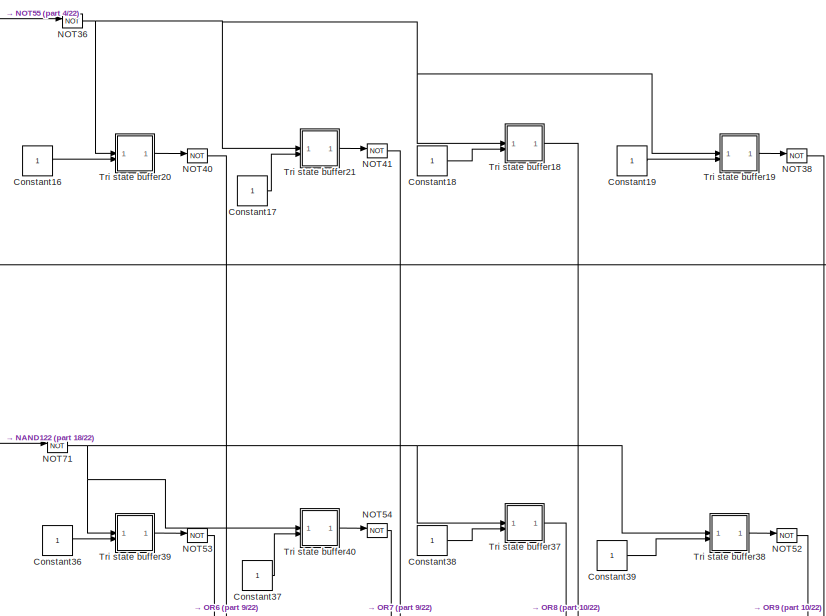
[diagram: root canvas - part 1/22, top right region]
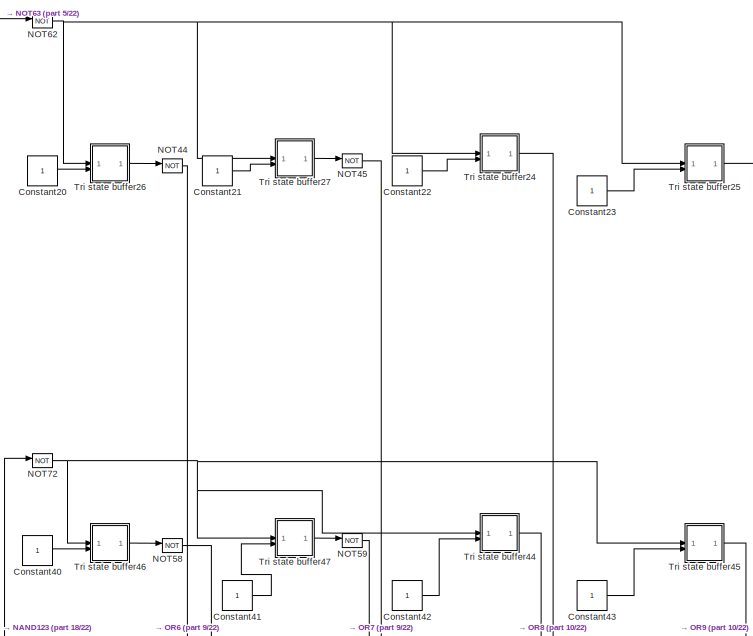
[diagram: root canvas - part 2/22, top right region]
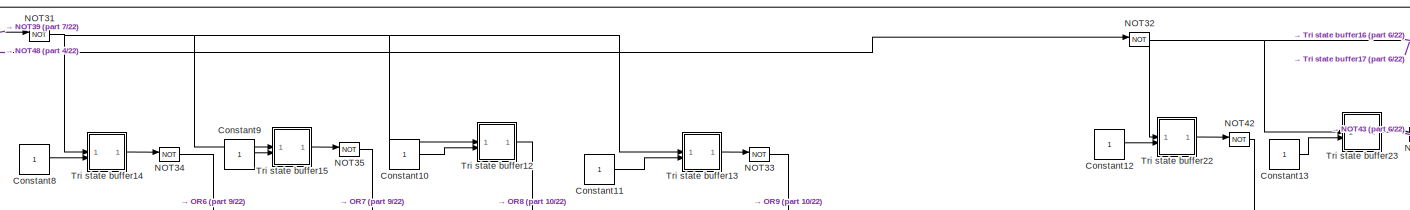
[diagram: root canvas - part 3/22, top center region]
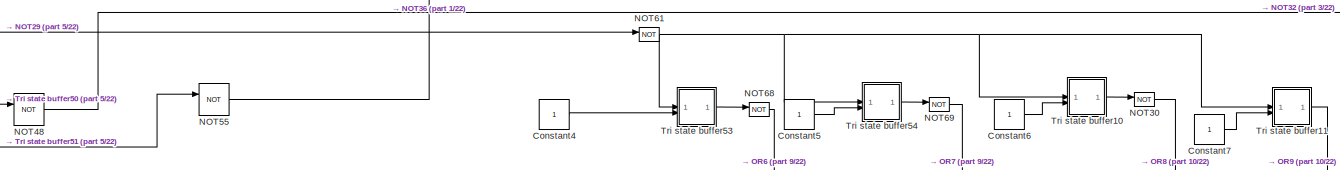
[diagram: root canvas - part 4/22, top center region]
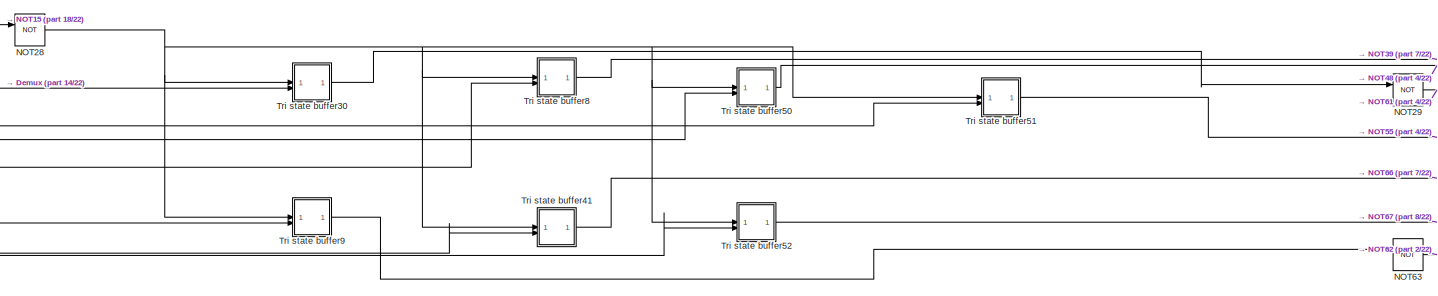
[diagram: root canvas - part 5/22, top left region]
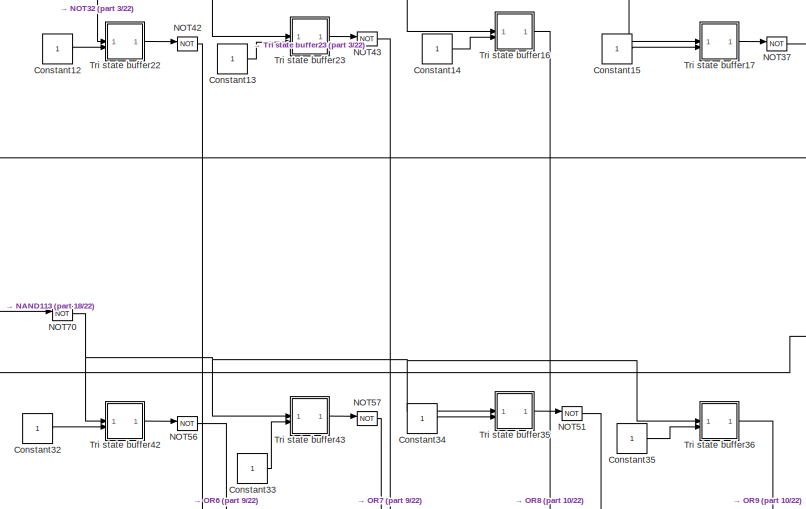
[diagram: root canvas - part 6/22, top right region]
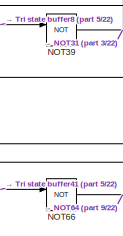
[diagram: root canvas - part 7/22, top center region]
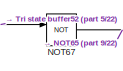
[diagram: root canvas - part 8/22, top center region]
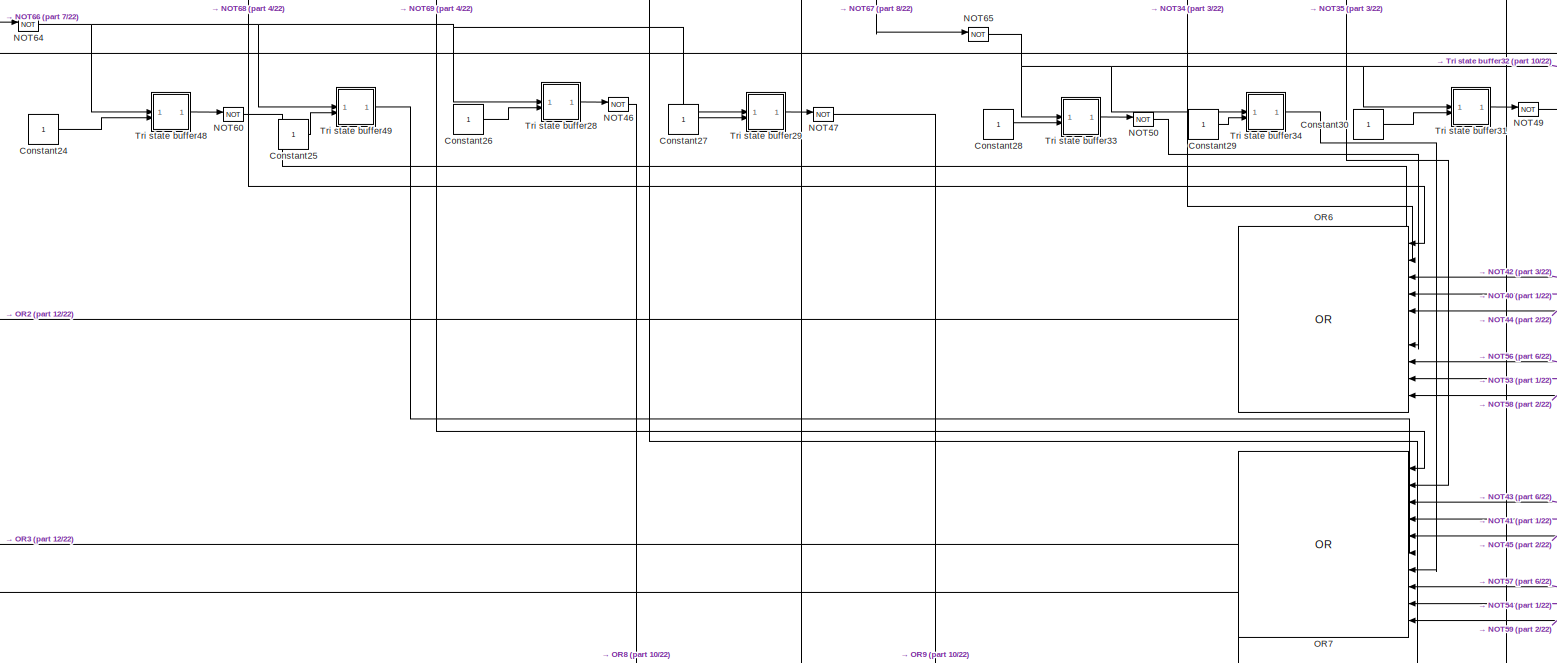
[diagram: root canvas - part 9/22, top center region]
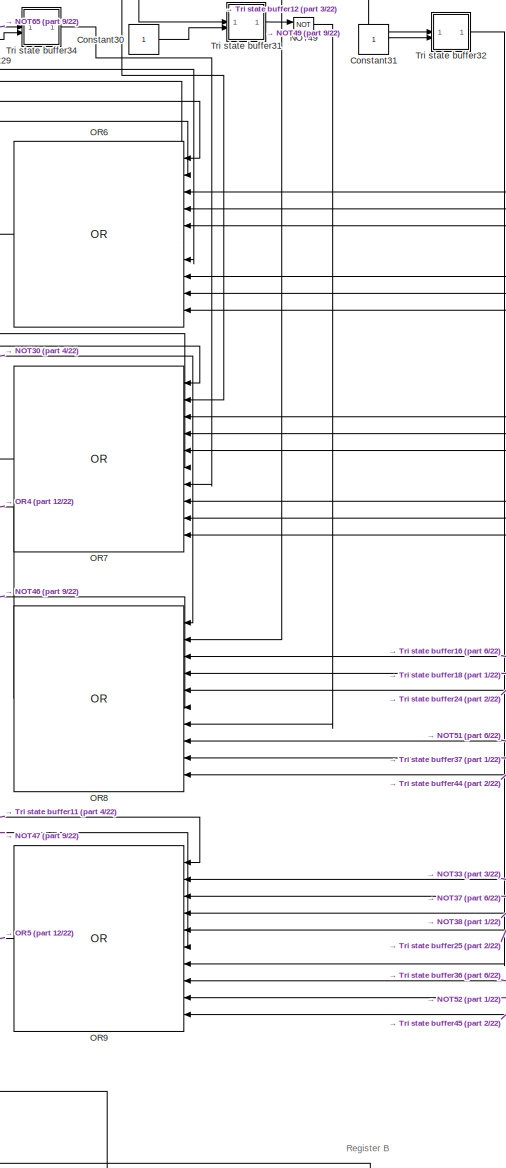
[diagram: root canvas - part 10/22, top center region]
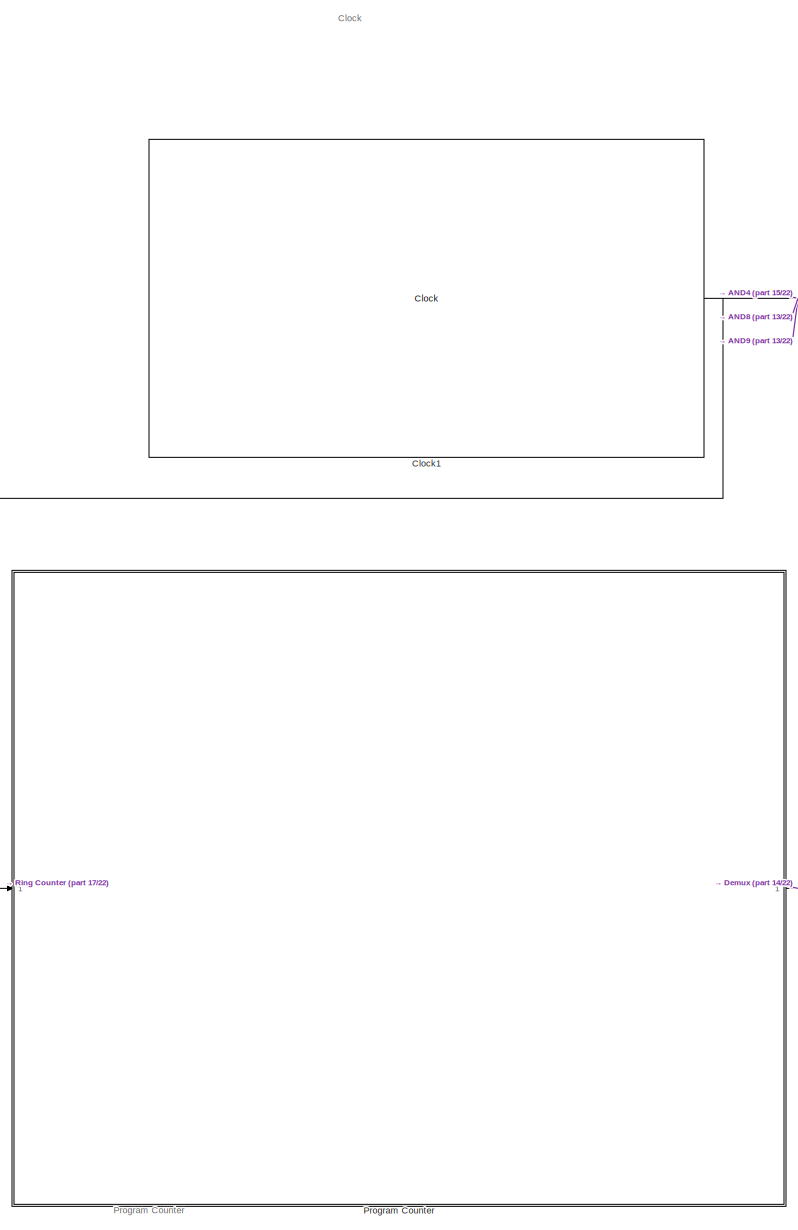
[diagram: root canvas - part 11/22, middle left region]
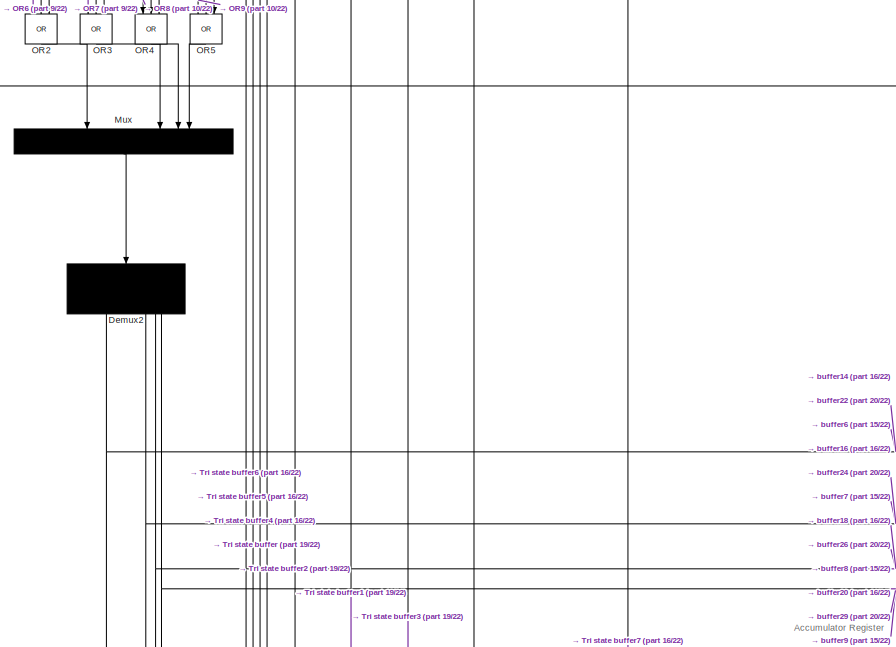
[diagram: root canvas - part 12/22, top center region]
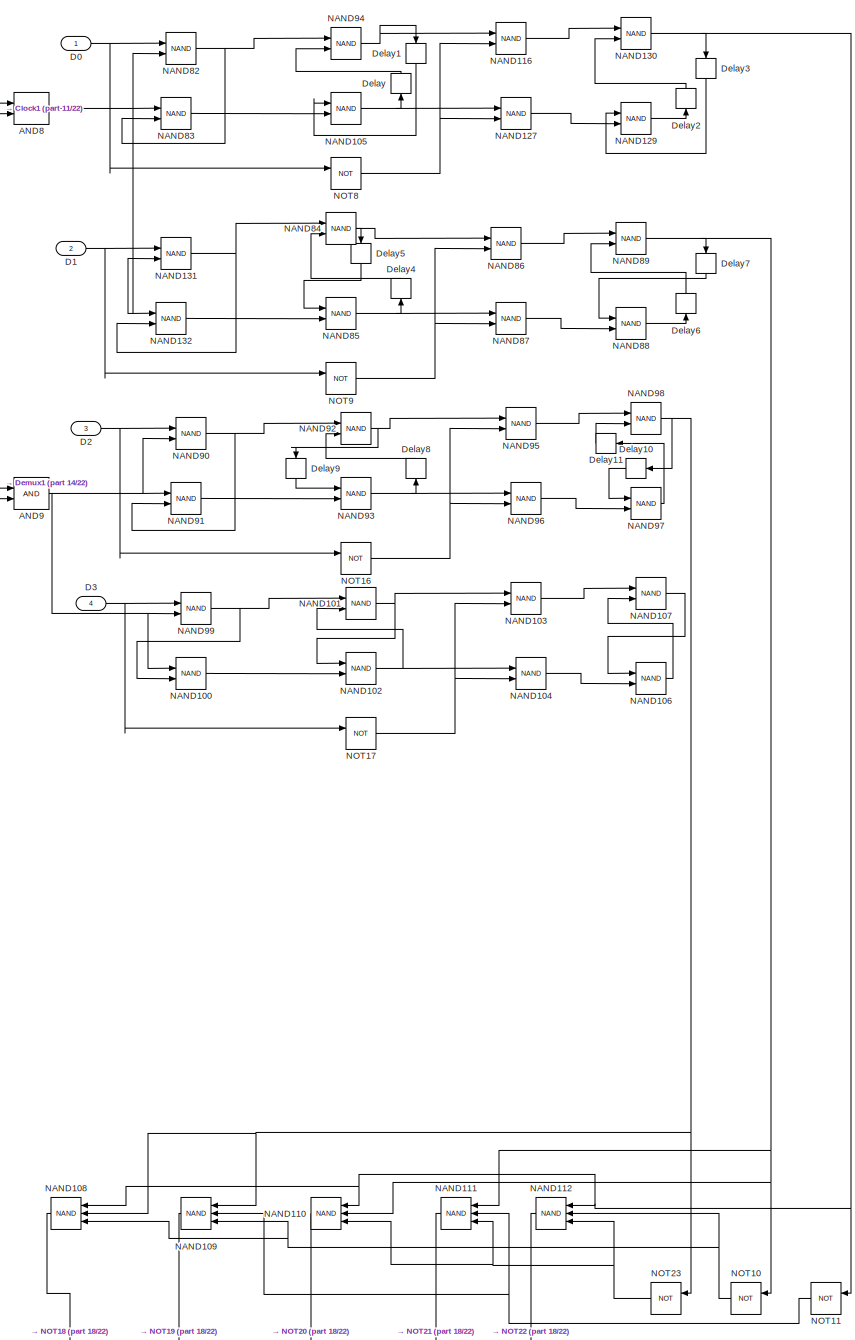
[diagram: root canvas - part 13/22, middle left region]
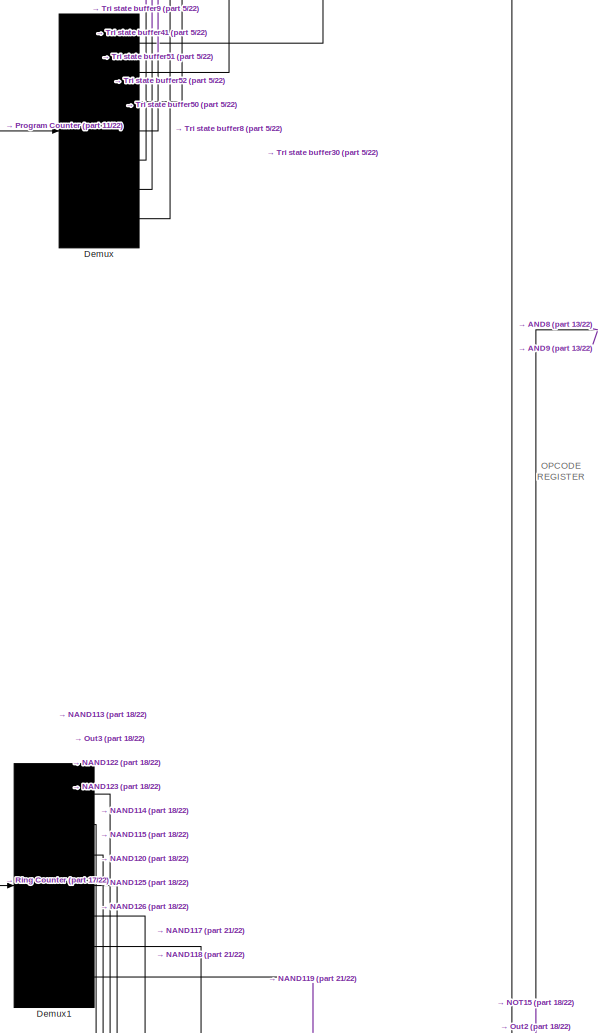
[diagram: root canvas - part 14/22, middle left region]
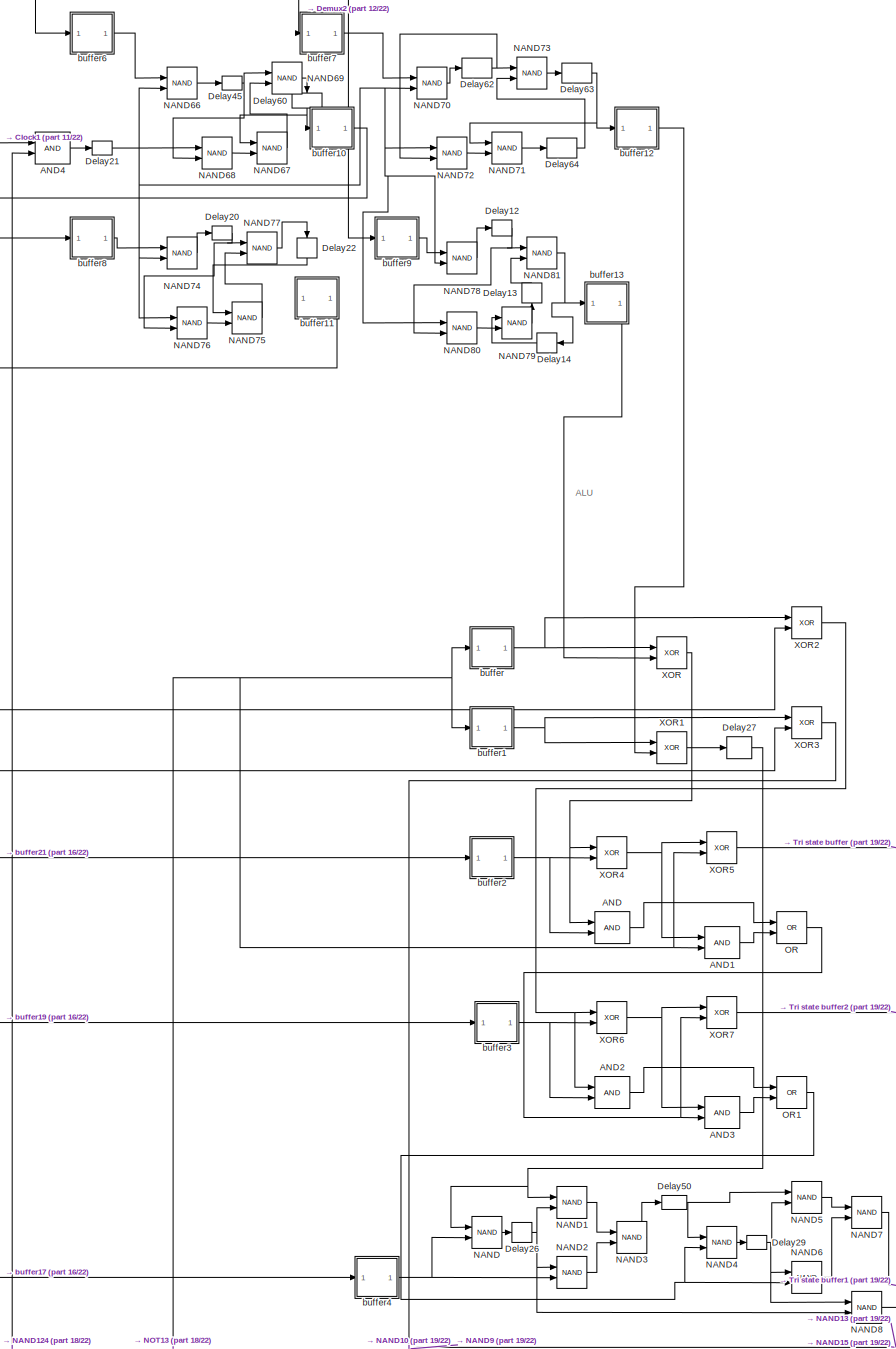
[diagram: root canvas - part 15/22, central region]
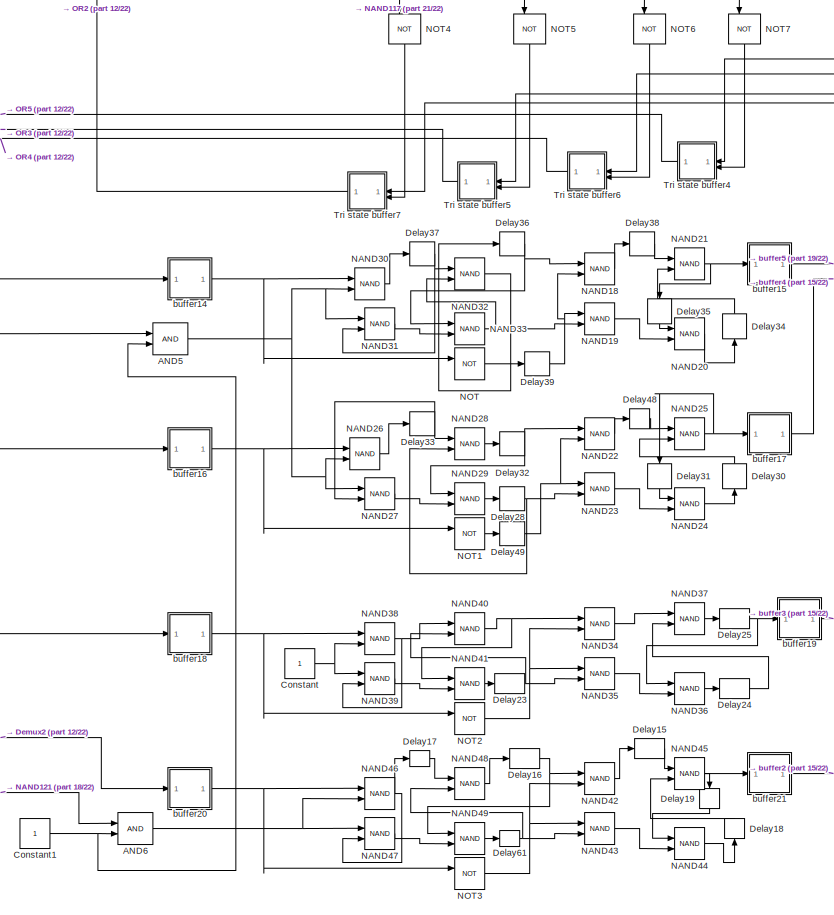
[diagram: root canvas - part 16/22, central region]
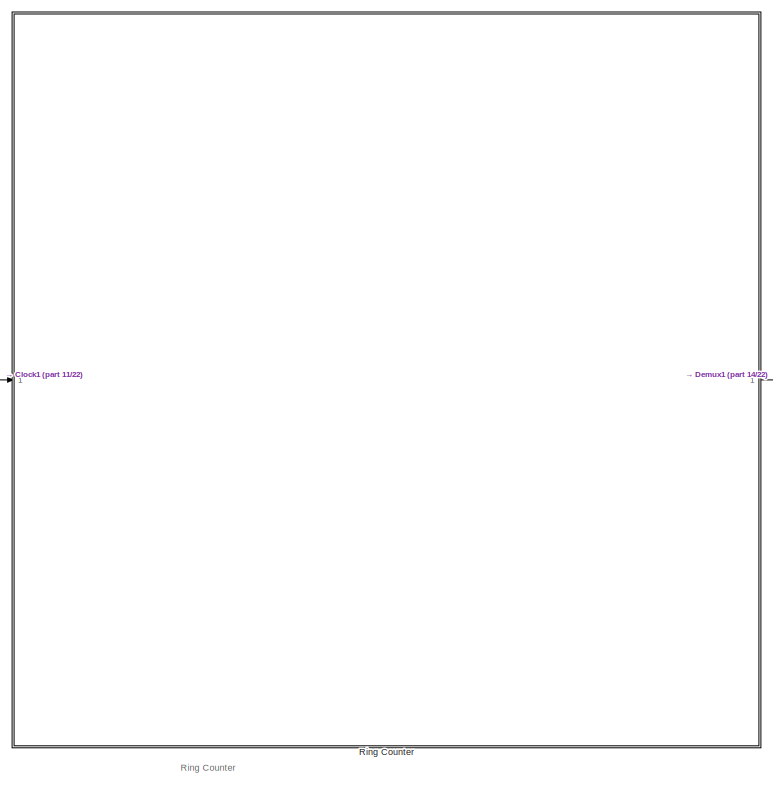
[diagram: root canvas - part 17/22, middle left region]
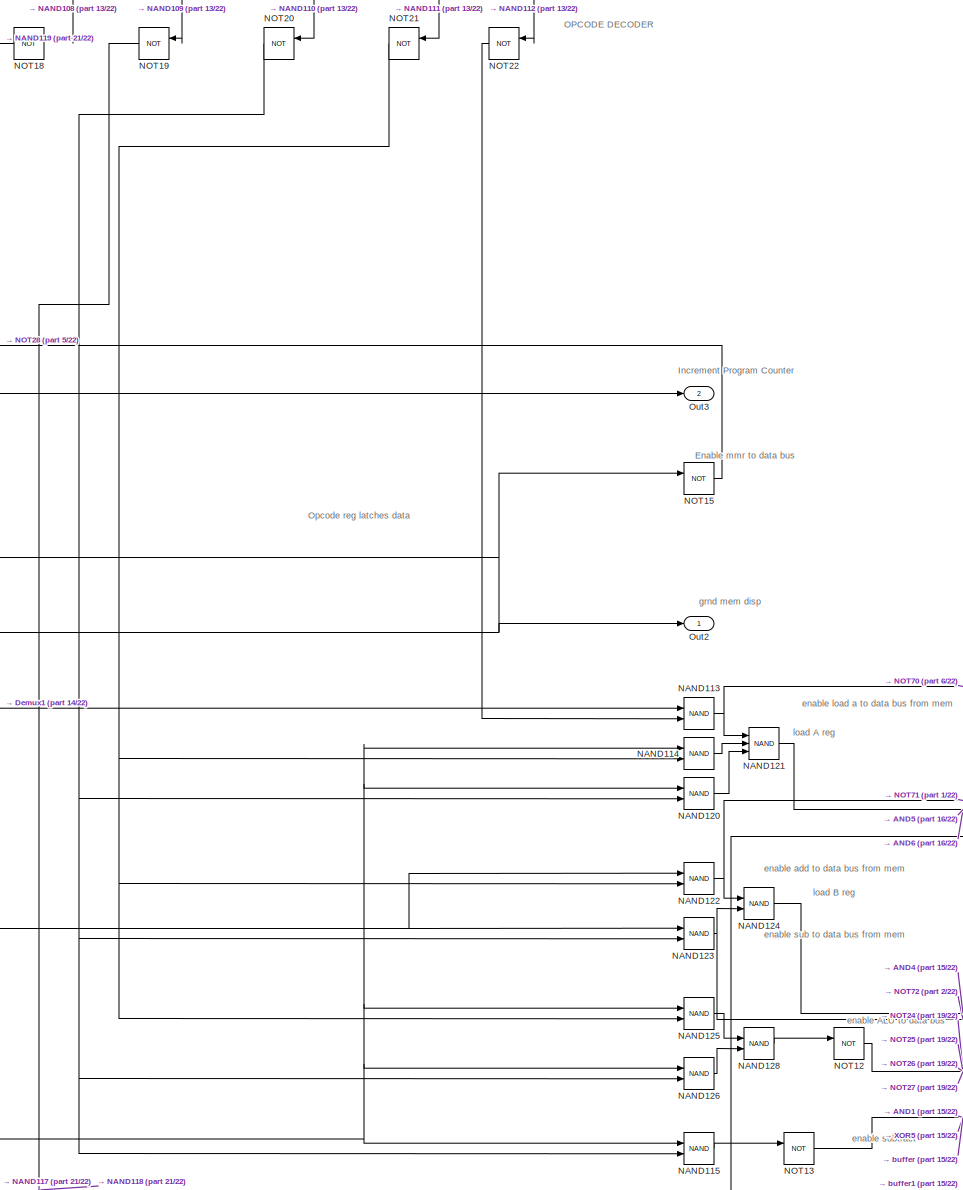
[diagram: root canvas - part 18/22, bottom left region]
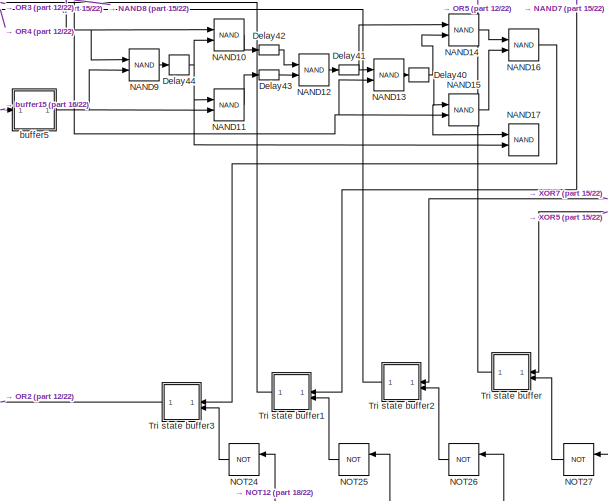
[diagram: root canvas - part 19/22, bottom right region]
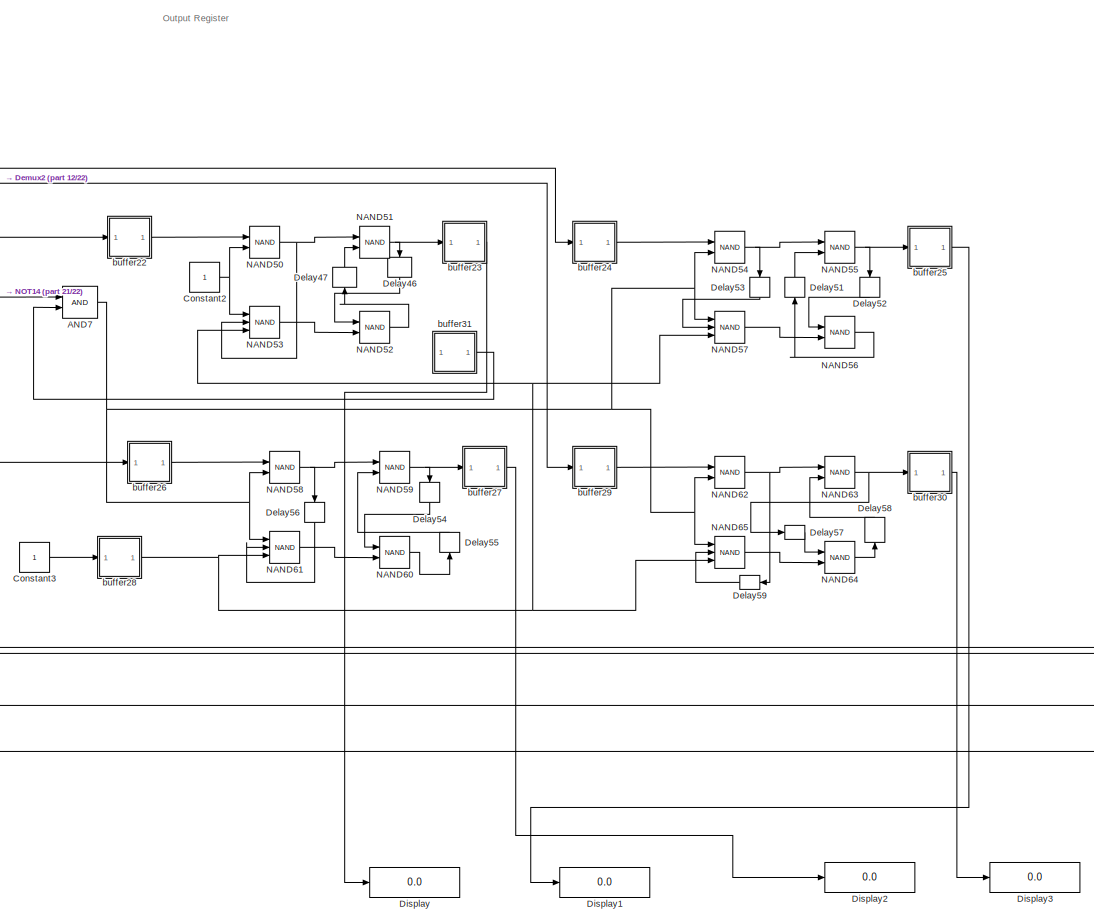
[diagram: root canvas - part 20/22, bottom center region]
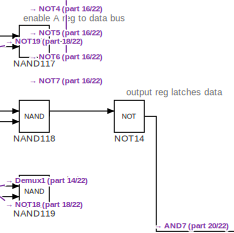
[diagram: root canvas - part 21/22, bottom left region]
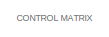
[diagram: root canvas - part 22/22, bottom left region]
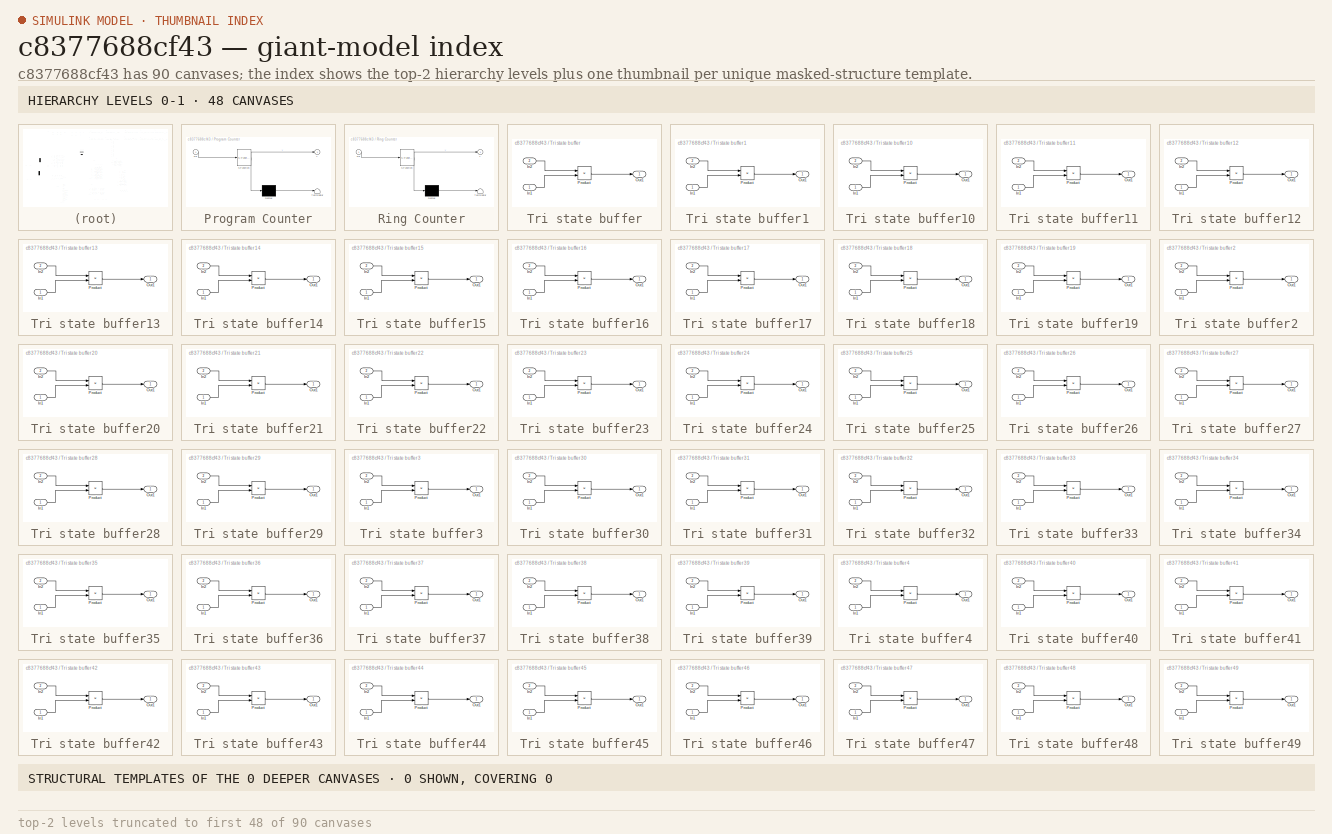
[diagram: thumbnail index - top-2 hierarchy levels (90 canvases (first 48 of 90 shown)) + 0 structural-template representatives of the remaining 0 canvases]
MODEL slx_c8377688cf43
KIND model
CONFIG AbsTol = auto
CONFIG EnableMultiTasking = off
CONFIG FixedStep = auto
CONFIG MaxStep = auto
CONFIG MinStep = auto
CONFIG RelTol = 1e-3
CONFIG SampleTimeConstraint = Unconstrained
CONFIG SolverName = VariableStepAuto
CONFIG StartTime = 0.0
CONFIG StopTime = 10.0
BLOCK [Logic] AND
  AllPortsSameDT = off
  IconShape = distinctive
  OutDataTypeStr = boolean
BLOCK [Logic] AND1
  AllPortsSameDT = off
  IconShape = distinctive
  OutDataTypeStr = boolean
BLOCK [Logic] AND2
  AllPortsSameDT = off
  IconShape = distinctive
  OutDataTypeStr = boolean
BLOCK [Logic] AND3
  AllPortsSameDT = off
  IconShape = distinctive
  OutDataTypeStr = boolean
BLOCK [Logic] AND4
  AllPortsSameDT = off
  IconShape = distinctive
  OutDataTypeStr = boolean
BLOCK [Logic] AND5
  AllPortsSameDT = off
  IconShape = distinctive
  OutDataTypeStr = boolean
BLOCK [Logic] AND6
  AllPortsSameDT = off
  IconShape = distinctive
  OutDataTypeStr = boolean
BLOCK [Logic] AND7
  AllPortsSameDT = off
  IconShape = distinctive
  OutDataTypeStr = boolean
BLOCK [Logic] AND8
  AllPortsSameDT = off
  IconShape = distinctive
  OutDataTypeStr = boolean
BLOCK [Logic] AND9
  AllPortsSameDT = off
  IconShape = distinctive
  OutDataTypeStr = boolean
BLOCK [Reference] Clock1  REF=simulink_extras/Flip Flops/Clock
  SourceBlock = simulink_extras/Flip Flops/Clock
  SourceType = Digital clock
BLOCK [Constant] Constant
BLOCK [Constant] Constant1
BLOCK [Constant] Constant10
BLOCK [Constant] Constant11
BLOCK [Constant] Constant12
BLOCK [Constant] Constant13
BLOCK [Constant] Constant14
BLOCK [Constant] Constant15
BLOCK [Constant] Constant16
BLOCK [Constant] Constant17
BLOCK [Constant] Constant18
BLOCK [Constant] Constant19
BLOCK [Constant] Constant2
BLOCK [Constant] Constant20
BLOCK [Constant] Constant21
BLOCK [Constant] Constant22
BLOCK [Constant] Constant23
BLOCK [Constant] Constant24
BLOCK [Constant] Constant25
BLOCK [Constant] Constant26
BLOCK [Constant] Constant27
BLOCK [Constant] Constant28
BLOCK [Constant] Constant29
BLOCK [Constant] Constant3
BLOCK [Constant] Constant30
BLOCK [Constant] Constant31
BLOCK [Constant] Constant32
BLOCK [Constant] Constant33
BLOCK [Constant] Constant34
BLOCK [Constant] Constant35
BLOCK [Constant] Constant36
BLOCK [Constant] Constant37
BLOCK [Constant] Constant38
BLOCK [Constant] Constant39
BLOCK [Constant] Constant4
BLOCK [Constant] Constant40
BLOCK [Constant] Constant41
BLOCK [Constant] Constant42
BLOCK [Constant] Constant43
BLOCK [Constant] Constant5
BLOCK [Constant] Constant6
BLOCK [Constant] Constant7
BLOCK [Constant] Constant8
BLOCK [Constant] Constant9
BLOCK [Inport] D0
BLOCK [Inport] D1
  Port = 2
BLOCK [Inport] D2
  Port = 3
BLOCK [Inport] D3
  Port = 4
BLOCK [Delay] Delay
  InputPortMap = u0
  NameLocation = right
BLOCK [Delay] Delay1
  InputPortMap = u0
  NameLocation = left
BLOCK [Delay] Delay10
  InputPortMap = u0
  NameLocation = top
BLOCK [Delay] Delay11
  InputPortMap = u0
  NameLocation = top
BLOCK [Delay] Delay12
  InputPortMap = u0
BLOCK [Delay] Delay13
  InputPortMap = u0
  NameLocation = right
BLOCK [Delay] Delay14
  InputPortMap = u0
  NameLocation = top
BLOCK [Delay] Delay15
  InputPortMap = u0
BLOCK [Delay] Delay16
  InputPortMap = u0
BLOCK [Delay] Delay17
  InputPortMap = u0
BLOCK [Delay] Delay18
  InputPortMap = u0
  NameLocation = right
BLOCK [Delay] Delay19
  InputPortMap = u0
  NameLocation = left
BLOCK [Delay] Delay2
  InputPortMap = u0
  NameLocation = right
BLOCK [Delay] Delay20
  InputPortMap = u0
BLOCK [Delay] Delay21
  InputPortMap = u0
BLOCK [Delay] Delay22
  InputPortMap = u0
  NameLocation = left
BLOCK [Delay] Delay23
  InputPortMap = u0
BLOCK [Delay] Delay24
  InputPortMap = u0
BLOCK [Delay] Delay25
  InputPortMap = u0
BLOCK [Delay] Delay26
  InputPortMap = u0
BLOCK [Delay] Delay27
  InputPortMap = u0
BLOCK [Delay] Delay28
  InputPortMap = u0
BLOCK [Delay] Delay29
  InputPortMap = u0
BLOCK [Delay] Delay3
  InputPortMap = u0
  NameLocation = left
BLOCK [Delay] Delay30
  InputPortMap = u0
  NameLocation = right
BLOCK [Delay] Delay31
  InputPortMap = u0
  NameLocation = left
BLOCK [Delay] Delay32
  InputPortMap = u0
BLOCK [Delay] Delay33
  InputPortMap = u0
BLOCK [Delay] Delay34
  InputPortMap = u0
  NameLocation = right
BLOCK [Delay] Delay35
  InputPortMap = u0
  NameLocation = left
BLOCK [Delay] Delay36
  InputPortMap = u0
BLOCK [Delay] Delay37
  InputPortMap = u0
BLOCK [Delay] Delay38
  InputPortMap = u0
BLOCK [Delay] Delay39
  InputPortMap = u0
BLOCK [Delay] Delay4
  InputPortMap = u0
  NameLocation = right
BLOCK [Delay] Delay40
  InputPortMap = u0
BLOCK [Delay] Delay41
  InputPortMap = u0
BLOCK [Delay] Delay42
  InputPortMap = u0
BLOCK [Delay] Delay43
  InputPortMap = u0
BLOCK [Delay] Delay44
  InputPortMap = u0
BLOCK [Delay] Delay45
  InputPortMap = u0
BLOCK [Delay] Delay46
  InputPortMap = u0
  NameLocation = left
BLOCK [Delay] Delay47
  InputPortMap = u0
  NameLocation = right
BLOCK [Delay] Delay48
  InputPortMap = u0
BLOCK [Delay] Delay49
  InputPortMap = u0
BLOCK [Delay] Delay5
  InputPortMap = u0
  NameLocation = left
BLOCK [Delay] Delay50
  InputPortMap = u0
BLOCK [Delay] Delay51
  InputPortMap = u0
  NameLocation = right
BLOCK [Delay] Delay52
  InputPortMap = u0
  NameLocation = left
BLOCK [Delay] Delay53
  InputPortMap = u0
  NameLocation = left
BLOCK [Delay] Delay54
  InputPortMap = u0
  NameLocation = left
BLOCK [Delay] Delay55
  InputPortMap = u0
  NameLocation = right
BLOCK [Delay] Delay56
  InputPortMap = u0
  NameLocation = left
BLOCK [Delay] Delay57
  InputPortMap = u0
BLOCK [Delay] Delay58
  InputPortMap = u0
  NameLocation = right
BLOCK [Delay] Delay59
  InputPortMap = u0
  NameLocation = top
BLOCK [Delay] Delay6
  InputPortMap = u0
  NameLocation = right
BLOCK [Delay] Delay60
  InputPortMap = u0
  NameLocation = left
BLOCK [Delay] Delay61
  InputPortMap = u0
BLOCK [Delay] Delay62
  InputPortMap = u0
BLOCK [Delay] Delay63
  InputPortMap = u0
BLOCK [Delay] Delay64
  InputPortMap = u0
BLOCK [Delay] Delay7
  InputPortMap = u0
  NameLocation = left
BLOCK [Delay] Delay8
  InputPortMap = u0
  NameLocation = right
BLOCK [Delay] Delay9
  InputPortMap = u0
  NameLocation = left
BLOCK [Demux] Demux
  Outputs = 7
BLOCK [Demux] Demux1
  Outputs = 7
BLOCK [Demux] Demux2
  NameLocation = left
BLOCK [Display] Display
  Decimation = 1
BLOCK [Display] Display1
  Decimation = 1
BLOCK [Display] Display2
  Decimation = 1
BLOCK [Display] Display3
  Decimation = 1
BLOCK [Mux] Mux
  DisplayOption = bar
  NameLocation = left
BLOCK [Logic] NAND
  AllPortsSameDT = off
  IconShape = distinctive
  Operator = NAND
  OutDataTypeStr = boolean
BLOCK [Logic] NAND1
  AllPortsSameDT = off
  IconShape = distinctive
  Operator = NAND
  OutDataTypeStr = boolean
BLOCK [Logic] NAND10
  AllPortsSameDT = off
  IconShape = distinctive
  Operator = NAND
  OutDataTypeStr = boolean
BLOCK [Logic] NAND100
  AllPortsSameDT = off
  IconShape = distinctive
  Operator = NAND
  OutDataTypeStr = boolean
BLOCK [Logic] NAND101
  AllPortsSameDT = off
  IconShape = distinctive
  Operator = NAND
  OutDataTypeStr = boolean
BLOCK [Logic] NAND102
  AllPortsSameDT = off
  IconShape = distinctive
  Operator = NAND
  OutDataTypeStr = boolean
BLOCK [Logic] NAND103
  AllPortsSameDT = off
  IconShape = distinctive
  Operator = NAND
  OutDataTypeStr = boolean
BLOCK [Logic] NAND104
  AllPortsSameDT = off
  IconShape = distinctive
  Operator = NAND
  OutDataTypeStr = boolean
BLOCK [Logic] NAND105
  AllPortsSameDT = off
  IconShape = distinctive
  Operator = NAND
  OutDataTypeStr = boolean
BLOCK [Logic] NAND106
  AllPortsSameDT = off
  IconShape = distinctive
  Operator = NAND
  OutDataTypeStr = boolean
BLOCK [Logic] NAND107
  AllPortsSameDT = off
  IconShape = distinctive
  Operator = NAND
  OutDataTypeStr = boolean
BLOCK [Logic] NAND108
  AllPortsSameDT = off
  IconShape = distinctive
  Inputs = 3
  NameLocation = top
  Operator = NAND
  OutDataTypeStr = boolean
BLOCK [Logic] NAND109
  AllPortsSameDT = off
  IconShape = distinctive
  Inputs = 3
  NameLocation = top
  Operator = NAND
  OutDataTypeStr = boolean
BLOCK [Logic] NAND11
  AllPortsSameDT = off
  IconShape = distinctive
  Operator = NAND
  OutDataTypeStr = boolean
BLOCK [Logic] NAND110
  AllPortsSameDT = off
  IconShape = distinctive
  Inputs = 3
  NameLocation = top
  Operator = NAND
  OutDataTypeStr = boolean
BLOCK [Logic] NAND111
  AllPortsSameDT = off
  IconShape = distinctive
  Inputs = 3
  NameLocation = top
  Operator = NAND
  OutDataTypeStr = boolean
BLOCK [Logic] NAND112
  AllPortsSameDT = off
  IconShape = distinctive
  Inputs = 3
  NameLocation = top
  Operator = NAND
  OutDataTypeStr = boolean
BLOCK [Logic] NAND113
  AllPortsSameDT = off
  IconShape = distinctive
  Operator = NAND
  OutDataTypeStr = boolean
BLOCK [Logic] NAND114
  AllPortsSameDT = off
  IconShape = distinctive
  Operator = NAND
  OutDataTypeStr = boolean
BLOCK [Logic] NAND115
  AllPortsSameDT = off
  IconShape = distinctive
  Operator = NAND
  OutDataTypeStr = boolean
BLOCK [Logic] NAND116
  AllPortsSameDT = off
  IconShape = distinctive
  Operator = NAND
  OutDataTypeStr = boolean
BLOCK [Logic] NAND117
  AllPortsSameDT = off
  IconShape = distinctive
  Operator = NAND
  OutDataTypeStr = boolean
BLOCK [Logic] NAND118
  AllPortsSameDT = off
  IconShape = distinctive
  Operator = NAND
  OutDataTypeStr = boolean
BLOCK [Logic] NAND119
  AllPortsSameDT = off
  IconShape = distinctive
  Operator = NAND
  OutDataTypeStr = boolean
BLOCK [Logic] NAND12
  AllPortsSameDT = off
  IconShape = distinctive
  Operator = NAND
  OutDataTypeStr = boolean
BLOCK [Logic] NAND120
  AllPortsSameDT = off
  IconShape = distinctive
  Operator = NAND
  OutDataTypeStr = boolean
BLOCK [Logic] NAND121
  AllPortsSameDT = off
  IconShape = distinctive
  Inputs = 3
  Operator = NAND
  OutDataTypeStr = boolean
BLOCK [Logic] NAND122
  AllPortsSameDT = off
  IconShape = distinctive
  Operator = NAND
  OutDataTypeStr = boolean
BLOCK [Logic] NAND123
  AllPortsSameDT = off
  IconShape = distinctive
  Operator = NAND
  OutDataTypeStr = boolean
BLOCK [Logic] NAND124
  AllPortsSameDT = off
  IconShape = distinctive
  Operator = NAND
  OutDataTypeStr = boolean
BLOCK [Logic] NAND125
  AllPortsSameDT = off
  IconShape = distinctive
  Operator = NAND
  OutDataTypeStr = boolean
BLOCK [Logic] NAND126
  AllPortsSameDT = off
  IconShape = distinctive
  Operator = NAND
  OutDataTypeStr = boolean
BLOCK [Logic] NAND127
  AllPortsSameDT = off
  IconShape = distinctive
  Operator = NAND
  OutDataTypeStr = boolean
BLOCK [Logic] NAND128
  AllPortsSameDT = off
  IconShape = distinctive
  Operator = NAND
  OutDataTypeStr = boolean
BLOCK [Logic] NAND129
  AllPortsSameDT = off
  IconShape = distinctive
  Operator = NAND
  OutDataTypeStr = boolean
BLOCK [Logic] NAND13
  AllPortsSameDT = off
  IconShape = distinctive
  Operator = NAND
  OutDataTypeStr = boolean
BLOCK [Logic] NAND130
  AllPortsSameDT = off
  IconShape = distinctive
  Operator = NAND
  OutDataTypeStr = boolean
BLOCK [Logic] NAND131
  AllPortsSameDT = off
  IconShape = distinctive
  Operator = NAND
  OutDataTypeStr = boolean
BLOCK [Logic] NAND132
  AllPortsSameDT = off
  IconShape = distinctive
  Operator = NAND
  OutDataTypeStr = boolean
BLOCK [Logic] NAND14
  AllPortsSameDT = off
  IconShape = distinctive
  Operator = NAND
  OutDataTypeStr = boolean
BLOCK [Logic] NAND15
  AllPortsSameDT = off
  IconShape = distinctive
  Operator = NAND
  OutDataTypeStr = boolean
BLOCK [Logic] NAND16
  AllPortsSameDT = off
  IconShape = distinctive
  Operator = NAND
  OutDataTypeStr = boolean
BLOCK [Logic] NAND17
  AllPortsSameDT = off
  IconShape = distinctive
  Operator = NAND
  OutDataTypeStr = boolean
BLOCK [Logic] NAND18
  AllPortsSameDT = off
  IconShape = distinctive
  Operator = NAND
  OutDataTypeStr = boolean
BLOCK [Logic] NAND19
  AllPortsSameDT = off
  IconShape = distinctive
  Operator = NAND
  OutDataTypeStr = boolean
BLOCK [Logic] NAND2
  AllPortsSameDT = off
  IconShape = distinctive
  Operator = NAND
  OutDataTypeStr = boolean
BLOCK [Logic] NAND20
  AllPortsSameDT = off
  IconShape = distinctive
  Operator = NAND
  OutDataTypeStr = boolean
BLOCK [Logic] NAND21
  AllPortsSameDT = off
  IconShape = distinctive
  Operator = NAND
  OutDataTypeStr = boolean
BLOCK [Logic] NAND22
  AllPortsSameDT = off
  IconShape = distinctive
  Operator = NAND
  OutDataTypeStr = boolean
BLOCK [Logic] NAND23
  AllPortsSameDT = off
  IconShape = distinctive
  Operator = NAND
  OutDataTypeStr = boolean
BLOCK [Logic] NAND24
  AllPortsSameDT = off
  IconShape = distinctive
  Operator = NAND
  OutDataTypeStr = boolean
BLOCK [Logic] NAND25
  AllPortsSameDT = off
  IconShape = distinctive
  Operator = NAND
  OutDataTypeStr = boolean
BLOCK [Logic] NAND26
  AllPortsSameDT = off
  IconShape = distinctive
  Operator = NAND
  OutDataTypeStr = boolean
BLOCK [Logic] NAND27
  AllPortsSameDT = off
  IconShape = distinctive
  Operator = NAND
  OutDataTypeStr = boolean
BLOCK [Logic] NAND28
  AllPortsSameDT = off
  IconShape = distinctive
  Operator = NAND
  OutDataTypeStr = boolean
BLOCK [Logic] NAND29
  AllPortsSameDT = off
  IconShape = distinctive
  Operator = NAND
  OutDataTypeStr = boolean
BLOCK [Logic] NAND3
  AllPortsSameDT = off
  IconShape = distinctive
  Operator = NAND
  OutDataTypeStr = boolean
BLOCK [Logic] NAND30
  AllPortsSameDT = off
  IconShape = distinctive
  Operator = NAND
  OutDataTypeStr = boolean
BLOCK [Logic] NAND31
  AllPortsSameDT = off
  IconShape = distinctive
  Operator = NAND
  OutDataTypeStr = boolean
BLOCK [Logic] NAND32
  AllPortsSameDT = off
  IconShape = distinctive
  Operator = NAND
  OutDataTypeStr = boolean
BLOCK [Logic] NAND33
  AllPortsSameDT = off
  IconShape = distinctive
  Operator = NAND
  OutDataTypeStr = boolean
BLOCK [Logic] NAND34
  AllPortsSameDT = off
  IconShape = distinctive
  Operator = NAND
  OutDataTypeStr = boolean
BLOCK [Logic] NAND35
  AllPortsSameDT = off
  IconShape = distinctive
  Operator = NAND
  OutDataTypeStr = boolean
BLOCK [Logic] NAND36
  AllPortsSameDT = off
  IconShape = distinctive
  Operator = NAND
  OutDataTypeStr = boolean
BLOCK [Logic] NAND37
  AllPortsSameDT = off
  IconShape = distinctive
  Operator = NAND
  OutDataTypeStr = boolean
BLOCK [Logic] NAND38
  AllPortsSameDT = off
  IconShape = distinctive
  Operator = NAND
  OutDataTypeStr = boolean
BLOCK [Logic] NAND39
  AllPortsSameDT = off
  IconShape = distinctive
  Operator = NAND
  OutDataTypeStr = boolean
BLOCK [Logic] NAND4
  AllPortsSameDT = off
  IconShape = distinctive
  Operator = NAND
  OutDataTypeStr = boolean
BLOCK [Logic] NAND40
  AllPortsSameDT = off
  IconShape = distinctive
  Operator = NAND
  OutDataTypeStr = boolean
BLOCK [Logic] NAND41
  AllPortsSameDT = off
  IconShape = distinctive
  Operator = NAND
  OutDataTypeStr = boolean
BLOCK [Logic] NAND42
  AllPortsSameDT = off
  IconShape = distinctive
  Operator = NAND
  OutDataTypeStr = boolean
BLOCK [Logic] NAND43
  AllPortsSameDT = off
  IconShape = distinctive
  Operator = NAND
  OutDataTypeStr = boolean
BLOCK [Logic] NAND44
  AllPortsSameDT = off
  IconShape = distinctive
  Operator = NAND
  OutDataTypeStr = boolean
BLOCK [Logic] NAND45
  AllPortsSameDT = off
  IconShape = distinctive
  Operator = NAND
  OutDataTypeStr = boolean
BLOCK [Logic] NAND46
  AllPortsSameDT = off
  IconShape = distinctive
  Operator = NAND
  OutDataTypeStr = boolean
BLOCK [Logic] NAND47
  AllPortsSameDT = off
  IconShape = distinctive
  Operator = NAND
  OutDataTypeStr = boolean
BLOCK [Logic] NAND48
  AllPortsSameDT = off
  IconShape = distinctive
  Operator = NAND
  OutDataTypeStr = boolean
BLOCK [Logic] NAND49
  AllPortsSameDT = off
  IconShape = distinctive
  Operator = NAND
  OutDataTypeStr = boolean
BLOCK [Logic] NAND5
  AllPortsSameDT = off
  IconShape = distinctive
  Operator = NAND
  OutDataTypeStr = boolean
BLOCK [Logic] NAND50
  AllPortsSameDT = off
  IconShape = distinctive
  Operator = NAND
  OutDataTypeStr = boolean
BLOCK [Logic] NAND51
  AllPortsSameDT = off
  IconShape = distinctive
  Operator = NAND
  OutDataTypeStr = boolean
BLOCK [Logic] NAND52
  AllPortsSameDT = off
  IconShape = distinctive
  Operator = NAND
  OutDataTypeStr = boolean
BLOCK [Logic] NAND53
  AllPortsSameDT = off
  IconShape = distinctive
  Inputs = 3
  Operator = NAND
  OutDataTypeStr = boolean
BLOCK [Logic] NAND54
  AllPortsSameDT = off
  IconShape = distinctive
  Operator = NAND
  OutDataTypeStr = boolean
BLOCK [Logic] NAND55
  AllPortsSameDT = off
  IconShape = distinctive
  Operator = NAND
  OutDataTypeStr = boolean
BLOCK [Logic] NAND56
  AllPortsSameDT = off
  IconShape = distinctive
  Operator = NAND
  OutDataTypeStr = boolean
BLOCK [Logic] NAND57
  AllPortsSameDT = off
  IconShape = distinctive
  Inputs = 3
  Operator = NAND
  OutDataTypeStr = boolean
BLOCK [Logic] NAND58
  AllPortsSameDT = off
  IconShape = distinctive
  Operator = NAND
  OutDataTypeStr = boolean
BLOCK [Logic] NAND59
  AllPortsSameDT = off
  IconShape = distinctive
  Operator = NAND
  OutDataTypeStr = boolean
BLOCK [Logic] NAND6
  AllPortsSameDT = off
  IconShape = distinctive
  Operator = NAND
  OutDataTypeStr = boolean
BLOCK [Logic] NAND60
  AllPortsSameDT = off
  IconShape = distinctive
  Operator = NAND
  OutDataTypeStr = boolean
BLOCK [Logic] NAND61
  AllPortsSameDT = off
  IconShape = distinctive
  Inputs = 3
  Operator = NAND
  OutDataTypeStr = boolean
BLOCK [Logic] NAND62
  AllPortsSameDT = off
  IconShape = distinctive
  Operator = NAND
  OutDataTypeStr = boolean
BLOCK [Logic] NAND63
  AllPortsSameDT = off
  IconShape = distinctive
  Operator = NAND
  OutDataTypeStr = boolean
BLOCK [Logic] NAND64
  AllPortsSameDT = off
  IconShape = distinctive
  Operator = NAND
  OutDataTypeStr = boolean
BLOCK [Logic] NAND65
  AllPortsSameDT = off
  IconShape = distinctive
  Inputs = 3
  Operator = NAND
  OutDataTypeStr = boolean
BLOCK [Logic] NAND66
  AllPortsSameDT = off
  IconShape = distinctive
  Operator = NAND
  OutDataTypeStr = boolean
BLOCK [Logic] NAND67
  AllPortsSameDT = off
  IconShape = distinctive
  Operator = NAND
  OutDataTypeStr = boolean
BLOCK [Logic] NAND68
  AllPortsSameDT = off
  IconShape = distinctive
  Operator = NAND
  OutDataTypeStr = boolean
BLOCK [Logic] NAND69
  AllPortsSameDT = off
  IconShape = distinctive
  Operator = NAND
  OutDataTypeStr = boolean
BLOCK [Logic] NAND7
  AllPortsSameDT = off
  IconShape = distinctive
  Operator = NAND
  OutDataTypeStr = boolean
BLOCK [Logic] NAND70
  AllPortsSameDT = off
  IconShape = distinctive
  Operator = NAND
  OutDataTypeStr = boolean
BLOCK [Logic] NAND71
  AllPortsSameDT = off
  IconShape = distinctive
  Operator = NAND
  OutDataTypeStr = boolean
BLOCK [Logic] NAND72
  AllPortsSameDT = off
  IconShape = distinctive
  Operator = NAND
  OutDataTypeStr = boolean
BLOCK [Logic] NAND73
  AllPortsSameDT = off
  IconShape = distinctive
  Operator = NAND
  OutDataTypeStr = boolean
BLOCK [Logic] NAND74
  AllPortsSameDT = off
  IconShape = distinctive
  Operator = NAND
  OutDataTypeStr = boolean
BLOCK [Logic] NAND75
  AllPortsSameDT = off
  IconShape = distinctive
  Operator = NAND
  OutDataTypeStr = boolean
BLOCK [Logic] NAND76
  AllPortsSameDT = off
  IconShape = distinctive
  Operator = NAND
  OutDataTypeStr = boolean
BLOCK [Logic] NAND77
  AllPortsSameDT = off
  IconShape = distinctive
  Operator = NAND
  OutDataTypeStr = boolean
BLOCK [Logic] NAND78
  AllPortsSameDT = off
  IconShape = distinctive
  Operator = NAND
  OutDataTypeStr = boolean
BLOCK [Logic] NAND79
  AllPortsSameDT = off
  IconShape = distinctive
  Operator = NAND
  OutDataTypeStr = boolean
BLOCK [Logic] NAND8
  AllPortsSameDT = off
  IconShape = distinctive
  Operator = NAND
  OutDataTypeStr = boolean
BLOCK [Logic] NAND80
  AllPortsSameDT = off
  IconShape = distinctive
  Operator = NAND
  OutDataTypeStr = boolean
BLOCK [Logic] NAND81
  AllPortsSameDT = off
  IconShape = distinctive
  Operator = NAND
  OutDataTypeStr = boolean
BLOCK [Logic] NAND82
  AllPortsSameDT = off
  IconShape = distinctive
  Operator = NAND
  OutDataTypeStr = boolean
BLOCK [Logic] NAND83
  AllPortsSameDT = off
  IconShape = distinctive
  Operator = NAND
  OutDataTypeStr = boolean
BLOCK [Logic] NAND84
  AllPortsSameDT = off
  IconShape = distinctive
  Operator = NAND
  OutDataTypeStr = boolean
BLOCK [Logic] NAND85
  AllPortsSameDT = off
  IconShape = distinctive
  Operator = NAND
  OutDataTypeStr = boolean
BLOCK [Logic] NAND86
  AllPortsSameDT = off
  IconShape = distinctive
  Operator = NAND
  OutDataTypeStr = boolean
BLOCK [Logic] NAND87
  AllPortsSameDT = off
  IconShape = distinctive
  Operator = NAND
  OutDataTypeStr = boolean
BLOCK [Logic] NAND88
  AllPortsSameDT = off
  IconShape = distinctive
  Operator = NAND
  OutDataTypeStr = boolean
BLOCK [Logic] NAND89
  AllPortsSameDT = off
  IconShape = distinctive
  Operator = NAND
  OutDataTypeStr = boolean
BLOCK [Logic] NAND9
  AllPortsSameDT = off
  IconShape = distinctive
  Operator = NAND
  OutDataTypeStr = boolean
BLOCK [Logic] NAND90
  AllPortsSameDT = off
  IconShape = distinctive
  Operator = NAND
  OutDataTypeStr = boolean
BLOCK [Logic] NAND91
  AllPortsSameDT = off
  IconShape = distinctive
  Operator = NAND
  OutDataTypeStr = boolean
BLOCK [Logic] NAND92
  AllPortsSameDT = off
  IconShape = distinctive
  Operator = NAND
  OutDataTypeStr = boolean
BLOCK [Logic] NAND93
  AllPortsSameDT = off
  IconShape = distinctive
  Operator = NAND
  OutDataTypeStr = boolean
BLOCK [Logic] NAND94
  AllPortsSameDT = off
  IconShape = distinctive
  Operator = NAND
  OutDataTypeStr = boolean
BLOCK [Logic] NAND95
  AllPortsSameDT = off
  IconShape = distinctive
  Operator = NAND
  OutDataTypeStr = boolean
BLOCK [Logic] NAND96
  AllPortsSameDT = off
  IconShape = distinctive
  Operator = NAND
  OutDataTypeStr = boolean
BLOCK [Logic] NAND97
  AllPortsSameDT = off
  IconShape = distinctive
  Operator = NAND
  OutDataTypeStr = boolean
BLOCK [Logic] NAND98
  AllPortsSameDT = off
  IconShape = distinctive
  Operator = NAND
  OutDataTypeStr = boolean
BLOCK [Logic] NAND99
  AllPortsSameDT = off
  IconShape = distinctive
  Operator = NAND
  OutDataTypeStr = boolean
BLOCK [Logic] NOT
  AllPortsSameDT = off
  IconShape = distinctive
  Operator = NOT
  OutDataTypeStr = boolean
BLOCK [Logic] NOT1
  AllPortsSameDT = off
  IconShape = distinctive
  Operator = NOT
  OutDataTypeStr = boolean
BLOCK [Logic] NOT10
  AllPortsSameDT = off
  IconShape = distinctive
  NameLocation = top
  Operator = NOT
  OutDataTypeStr = boolean
BLOCK [Logic] NOT11
  AllPortsSameDT = off
  IconShape = distinctive
  NameLocation = top
  Operator = NOT
  OutDataTypeStr = boolean
BLOCK [Logic] NOT12
  AllPortsSameDT = off
  IconShape = distinctive
  Operator = NOT
  OutDataTypeStr = boolean
BLOCK [Logic] NOT13
  AllPortsSameDT = off
  IconShape = distinctive
  Operator = NOT
  OutDataTypeStr = boolean
BLOCK [Logic] NOT14
  AllPortsSameDT = off
  IconShape = distinctive
  Operator = NOT
  OutDataTypeStr = boolean
BLOCK [Logic] NOT15
  AllPortsSameDT = off
  IconShape = distinctive
  Operator = NOT
  OutDataTypeStr = boolean
BLOCK [Logic] NOT16
  AllPortsSameDT = off
  IconShape = distinctive
  Operator = NOT
  OutDataTypeStr = boolean
BLOCK [Logic] NOT17
  AllPortsSameDT = off
  IconShape = distinctive
  Operator = NOT
  OutDataTypeStr = boolean
BLOCK [Logic] NOT18
  AllPortsSameDT = off
  IconShape = distinctive
  NameLocation = top
  Operator = NOT
  OutDataTypeStr = boolean
BLOCK [Logic] NOT19
  AllPortsSameDT = off
  IconShape = distinctive
  NameLocation = top
  Operator = NOT
  OutDataTypeStr = boolean
BLOCK [Logic] NOT2
  AllPortsSameDT = off
  IconShape = distinctive
  Operator = NOT
  OutDataTypeStr = boolean
BLOCK [Logic] NOT20
  AllPortsSameDT = off
  IconShape = distinctive
  NameLocation = top
  Operator = NOT
  OutDataTypeStr = boolean
BLOCK [Logic] NOT21
  AllPortsSameDT = off
  IconShape = distinctive
  NameLocation = top
  Operator = NOT
  OutDataTypeStr = boolean
BLOCK [Logic] NOT22
  AllPortsSameDT = off
  IconShape = distinctive
  NameLocation = top
  Operator = NOT
  OutDataTypeStr = boolean
BLOCK [Logic] NOT23
  AllPortsSameDT = off
  IconShape = distinctive
  NameLocation = top
  Operator = NOT
  OutDataTypeStr = boolean
BLOCK [Logic] NOT24
  AllPortsSameDT = off
  IconShape = distinctive
  NameLocation = top
  Operator = NOT
  OutDataTypeStr = boolean
BLOCK [Logic] NOT25
  AllPortsSameDT = off
  IconShape = distinctive
  NameLocation = top
  Operator = NOT
  OutDataTypeStr = boolean
BLOCK [Logic] NOT26
  AllPortsSameDT = off
  IconShape = distinctive
  NameLocation = top
  Operator = NOT
  OutDataTypeStr = boolean
BLOCK [Logic] NOT27
  AllPortsSameDT = off
  IconShape = distinctive
  NameLocation = top
  Operator = NOT
  OutDataTypeStr = boolean
BLOCK [Logic] NOT28
  AllPortsSameDT = off
  IconShape = distinctive
  Operator = NOT
  OutDataTypeStr = boolean
BLOCK [Logic] NOT29
  AllPortsSameDT = off
  IconShape = distinctive
  Operator = NOT
  OutDataTypeStr = boolean
BLOCK [Logic] NOT3
  AllPortsSameDT = off
  IconShape = distinctive
  Operator = NOT
  OutDataTypeStr = boolean
BLOCK [Logic] NOT30
  AllPortsSameDT = off
  IconShape = distinctive
  Operator = NOT
  OutDataTypeStr = boolean
BLOCK [Logic] NOT31
  AllPortsSameDT = off
  IconShape = distinctive
  Operator = NOT
  OutDataTypeStr = boolean
BLOCK [Logic] NOT32
  AllPortsSameDT = off
  IconShape = distinctive
  Operator = NOT
  OutDataTypeStr = boolean
BLOCK [Logic] NOT33
  AllPortsSameDT = off
  IconShape = distinctive
  Operator = NOT
  OutDataTypeStr = boolean
BLOCK [Logic] NOT34
  AllPortsSameDT = off
  IconShape = distinctive
  Operator = NOT
  OutDataTypeStr = boolean
BLOCK [Logic] NOT35
  AllPortsSameDT = off
  IconShape = distinctive
  Operator = NOT
  OutDataTypeStr = boolean
BLOCK [Logic] NOT36
  AllPortsSameDT = off
  IconShape = distinctive
  Operator = NOT
  OutDataTypeStr = boolean
BLOCK [Logic] NOT37
  AllPortsSameDT = off
  IconShape = distinctive
  Operator = NOT
  OutDataTypeStr = boolean
BLOCK [Logic] NOT38
  AllPortsSameDT = off
  IconShape = distinctive
  Operator = NOT
  OutDataTypeStr = boolean
BLOCK [Logic] NOT39
  AllPortsSameDT = off
  IconShape = distinctive
  Operator = NOT
  OutDataTypeStr = boolean
BLOCK [Logic] NOT4
  AllPortsSameDT = off
  IconShape = distinctive
  NameLocation = left
  Operator = NOT
  OutDataTypeStr = boolean
BLOCK [Logic] NOT40
  AllPortsSameDT = off
  IconShape = distinctive
  Operator = NOT
  OutDataTypeStr = boolean
BLOCK [Logic] NOT41
  AllPortsSameDT = off
  IconShape = distinctive
  Operator = NOT
  OutDataTypeStr = boolean
BLOCK [Logic] NOT42
  AllPortsSameDT = off
  IconShape = distinctive
  Operator = NOT
  OutDataTypeStr = boolean
BLOCK [Logic] NOT43
  AllPortsSameDT = off
  IconShape = distinctive
  Operator = NOT
  OutDataTypeStr = boolean
BLOCK [Logic] NOT44
  AllPortsSameDT = off
  IconShape = distinctive
  Operator = NOT
  OutDataTypeStr = boolean
BLOCK [Logic] NOT45
  AllPortsSameDT = off
  IconShape = distinctive
  Operator = NOT
  OutDataTypeStr = boolean
BLOCK [Logic] NOT46
  AllPortsSameDT = off
  IconShape = distinctive
  Operator = NOT
  OutDataTypeStr = boolean
BLOCK [Logic] NOT47
  AllPortsSameDT = off
  IconShape = distinctive
  Operator = NOT
  OutDataTypeStr = boolean
BLOCK [Logic] NOT48
  AllPortsSameDT = off
  IconShape = distinctive
  Operator = NOT
  OutDataTypeStr = boolean
BLOCK [Logic] NOT49
  AllPortsSameDT = off
  IconShape = distinctive
  Operator = NOT
  OutDataTypeStr = boolean
BLOCK [Logic] NOT5
  AllPortsSameDT = off
  IconShape = distinctive
  NameLocation = left
  Operator = NOT
  OutDataTypeStr = boolean
BLOCK [Logic] NOT50
  AllPortsSameDT = off
  IconShape = distinctive
  Operator = NOT
  OutDataTypeStr = boolean
BLOCK [Logic] NOT51
  AllPortsSameDT = off
  IconShape = distinctive
  Operator = NOT
  OutDataTypeStr = boolean
BLOCK [Logic] NOT52
  AllPortsSameDT = off
  IconShape = distinctive
  Operator = NOT
  OutDataTypeStr = boolean
BLOCK [Logic] NOT53
  AllPortsSameDT = off
  IconShape = distinctive
  Operator = NOT
  OutDataTypeStr = boolean
BLOCK [Logic] NOT54
  AllPortsSameDT = off
  IconShape = distinctive
  Operator = NOT
  OutDataTypeStr = boolean
BLOCK [Logic] NOT55
  AllPortsSameDT = off
  IconShape = distinctive
  Operator = NOT
  OutDataTypeStr = boolean
BLOCK [Logic] NOT56
  AllPortsSameDT = off
  IconShape = distinctive
  Operator = NOT
  OutDataTypeStr = boolean
BLOCK [Logic] NOT57
  AllPortsSameDT = off
  IconShape = distinctive
  Operator = NOT
  OutDataTypeStr = boolean
BLOCK [Logic] NOT58
  AllPortsSameDT = off
  IconShape = distinctive
  Operator = NOT
  OutDataTypeStr = boolean
BLOCK [Logic] NOT59
  AllPortsSameDT = off
  IconShape = distinctive
  Operator = NOT
  OutDataTypeStr = boolean
BLOCK [Logic] NOT6
  AllPortsSameDT = off
  IconShape = distinctive
  NameLocation = left
  Operator = NOT
  OutDataTypeStr = boolean
BLOCK [Logic] NOT60
  AllPortsSameDT = off
  IconShape = distinctive
  Operator = NOT
  OutDataTypeStr = boolean
BLOCK [Logic] NOT61
  AllPortsSameDT = off
  IconShape = distinctive
  Operator = NOT
  OutDataTypeStr = boolean
BLOCK [Logic] NOT62
  AllPortsSameDT = off
  IconShape = distinctive
  Operator = NOT
  OutDataTypeStr = boolean
BLOCK [Logic] NOT63
  AllPortsSameDT = off
  IconShape = distinctive
  Operator = NOT
  OutDataTypeStr = boolean
BLOCK [Logic] NOT64
  AllPortsSameDT = off
  IconShape = distinctive
  Operator = NOT
  OutDataTypeStr = boolean
BLOCK [Logic] NOT65
  AllPortsSameDT = off
  IconShape = distinctive
  Operator = NOT
  OutDataTypeStr = boolean
BLOCK [Logic] NOT66
  AllPortsSameDT = off
  IconShape = distinctive
  Operator = NOT
  OutDataTypeStr = boolean
BLOCK [Logic] NOT67
  AllPortsSameDT = off
  IconShape = distinctive
  Operator = NOT
  OutDataTypeStr = boolean
BLOCK [Logic] NOT68
  AllPortsSameDT = off
  IconShape = distinctive
  Operator = NOT
  OutDataTypeStr = boolean
BLOCK [Logic] NOT69
  AllPortsSameDT = off
  IconShape = distinctive
  Operator = NOT
  OutDataTypeStr = boolean
BLOCK [Logic] NOT7
  AllPortsSameDT = off
  IconShape = distinctive
  NameLocation = left
  Operator = NOT
  OutDataTypeStr = boolean
BLOCK [Logic] NOT70
  AllPortsSameDT = off
  IconShape = distinctive
  Operator = NOT
  OutDataTypeStr = boolean
BLOCK [Logic] NOT71
  AllPortsSameDT = off
  IconShape = distinctive
  Operator = NOT
  OutDataTypeStr = boolean
BLOCK [Logic] NOT72
  AllPortsSameDT = off
  IconShape = distinctive
  Operator = NOT
  OutDataTypeStr = boolean
BLOCK [Logic] NOT8
  AllPortsSameDT = off
  IconShape = distinctive
  Operator = NOT
  OutDataTypeStr = boolean
BLOCK [Logic] NOT9
  AllPortsSameDT = off
  IconShape = distinctive
  Operator = NOT
  OutDataTypeStr = boolean
BLOCK [Logic] OR
  AllPortsSameDT = off
  IconShape = distinctive
  Operator = OR
  OutDataTypeStr = boolean
BLOCK [Logic] OR1
  AllPortsSameDT = off
  IconShape = distinctive
  Operator = OR
  OutDataTypeStr = boolean
BLOCK [Logic] OR2
  AllPortsSameDT = off
  IconShape = distinctive
  Inputs = 3
  NameLocation = left
  Operator = OR
  OutDataTypeStr = boolean
BLOCK [Logic] OR3
  AllPortsSameDT = off
  IconShape = distinctive
  Inputs = 3
  NameLocation = left
  Operator = OR
  OutDataTypeStr = boolean
BLOCK [Logic] OR4
  AllPortsSameDT = off
  IconShape = distinctive
  Inputs = 3
  NameLocation = left
  Operator = OR
  OutDataTypeStr = boolean
BLOCK [Logic] OR5
  AllPortsSameDT = off
  IconShape = distinctive
  Inputs = 3
  NameLocation = left
  Operator = OR
  OutDataTypeStr = boolean
BLOCK [Logic] OR6
  AllPortsSameDT = off
  IconShape = distinctive
  Inputs = 10
  NameLocation = top
  Operator = OR
  OutDataTypeStr = boolean
BLOCK [Logic] OR7
  AllPortsSameDT = off
  IconShape = distinctive
  Inputs = 10
  NameLocation = top
  Operator = OR
  OutDataTypeStr = boolean
BLOCK [Logic] OR8
  AllPortsSameDT = off
  IconShape = distinctive
  Inputs = 10
  NameLocation = top
  Operator = OR
  OutDataTypeStr = boolean
BLOCK [Logic] OR9
  AllPortsSameDT = off
  IconShape = distinctive
  Inputs = 10
  NameLocation = top
  Operator = OR
  OutDataTypeStr = boolean
BLOCK [Outport] Out2
BLOCK [Outport] Out3
  Port = 2
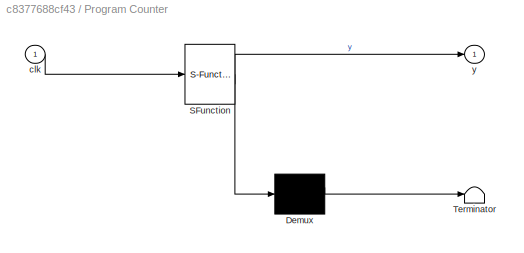
BLOCK [SubSystem] Program Counter
  ErrorFcn = Stateflow.Translate.translate
  PermitHierarchicalResolution = ExplicitOnly
  SFBlockType = MATLAB Function
  TreatAsAtomicUnit = on
BLOCK [Demux] Program Counter/ Demux 
  Outputs = 1
BLOCK [S-Function] Program Counter/ SFunction 
  EnableBusSupport = on
  FunctionName = sf_sfun
  PortCounts = [1 2]
  SFcnIsStateOwnerBlock = off
  SFunctionDeploymentMode = off
  Tag = Stateflow S-Function 2
BLOCK [Terminator] Program Counter/ Terminator 
BLOCK [Inport] Program Counter/clk
BLOCK [Outport] Program Counter/y
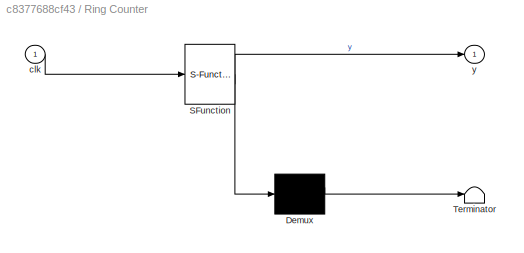
BLOCK [SubSystem] Ring Counter
  ErrorFcn = Stateflow.Translate.translate
  PermitHierarchicalResolution = ExplicitOnly
  SFBlockType = MATLAB Function
  TreatAsAtomicUnit = on
BLOCK [Demux] Ring Counter/ Demux 
  Outputs = 1
BLOCK [S-Function] Ring Counter/ SFunction 
  EnableBusSupport = on
  FunctionName = sf_sfun
  PortCounts = [1 2]
  SFcnIsStateOwnerBlock = off
  SFunctionDeploymentMode = off
  Tag = Stateflow S-Function 1
BLOCK [Terminator] Ring Counter/ Terminator 
BLOCK [Inport] Ring Counter/clk
BLOCK [Outport] Ring Counter/y
BLOCK [SubSystem] Tri state buffer
  NameLocation = top
BLOCK [Inport] Tri state buffer/In1
BLOCK [Inport] Tri state buffer/In2
  Port = 2
BLOCK [Outport] Tri state buffer/Out1
BLOCK [Product] Tri state buffer/Product
BLOCK [SubSystem] Tri state buffer1
  NameLocation = top
BLOCK [Inport] Tri state buffer1/In1
BLOCK [Inport] Tri state buffer1/In2
  Port = 2
BLOCK [Outport] Tri state buffer1/Out1
BLOCK [Product] Tri state buffer1/Product
BLOCK [SubSystem] Tri state buffer10
BLOCK [Inport] Tri state buffer10/In1
BLOCK [Inport] Tri state buffer10/In2
  Port = 2
BLOCK [Outport] Tri state buffer10/Out1
BLOCK [Product] Tri state buffer10/Product
BLOCK [SubSystem] Tri state buffer11
BLOCK [Inport] Tri state buffer11/In1
BLOCK [Inport] Tri state buffer11/In2
  Port = 2
BLOCK [Outport] Tri state buffer11/Out1
BLOCK [Product] Tri state buffer11/Product
BLOCK [SubSystem] Tri state buffer12
BLOCK [Inport] Tri state buffer12/In1
BLOCK [Inport] Tri state buffer12/In2
  Port = 2
BLOCK [Outport] Tri state buffer12/Out1
BLOCK [Product] Tri state buffer12/Product
BLOCK [SubSystem] Tri state buffer13
BLOCK [Inport] Tri state buffer13/In1
BLOCK [Inport] Tri state buffer13/In2
  Port = 2
BLOCK [Outport] Tri state buffer13/Out1
BLOCK [Product] Tri state buffer13/Product
BLOCK [SubSystem] Tri state buffer14
BLOCK [Inport] Tri state buffer14/In1
BLOCK [Inport] Tri state buffer14/In2
  Port = 2
BLOCK [Outport] Tri state buffer14/Out1
BLOCK [Product] Tri state buffer14/Product
BLOCK [SubSystem] Tri state buffer15
BLOCK [Inport] Tri state buffer15/In1
BLOCK [Inport] Tri state buffer15/In2
  Port = 2
BLOCK [Outport] Tri state buffer15/Out1
BLOCK [Product] Tri state buffer15/Product
BLOCK [SubSystem] Tri state buffer16
BLOCK [Inport] Tri state buffer16/In1
BLOCK [Inport] Tri state buffer16/In2
  Port = 2
BLOCK [Outport] Tri state buffer16/Out1
BLOCK [Product] Tri state buffer16/Product
BLOCK [SubSystem] Tri state buffer17
BLOCK [Inport] Tri state buffer17/In1
BLOCK [Inport] Tri state buffer17/In2
  Port = 2
BLOCK [Outport] Tri state buffer17/Out1
BLOCK [Product] Tri state buffer17/Product
BLOCK [SubSystem] Tri state buffer18
BLOCK [Inport] Tri state buffer18/In1
BLOCK [Inport] Tri state buffer18/In2
  Port = 2
BLOCK [Outport] Tri state buffer18/Out1
BLOCK [Product] Tri state buffer18/Product
BLOCK [SubSystem] Tri state buffer19
BLOCK [Inport] Tri state buffer19/In1
BLOCK [Inport] Tri state buffer19/In2
  Port = 2
BLOCK [Outport] Tri state buffer19/Out1
BLOCK [Product] Tri state buffer19/Product
BLOCK [SubSystem] Tri state buffer2
  NameLocation = top
BLOCK [Inport] Tri state buffer2/In1
BLOCK [Inport] Tri state buffer2/In2
  Port = 2
BLOCK [Outport] Tri state buffer2/Out1
BLOCK [Product] Tri state buffer2/Product
BLOCK [SubSystem] Tri state buffer20
BLOCK [Inport] Tri state buffer20/In1
BLOCK [Inport] Tri state buffer20/In2
  Port = 2
BLOCK [Outport] Tri state buffer20/Out1
BLOCK [Product] Tri state buffer20/Product
BLOCK [SubSystem] Tri state buffer21
BLOCK [Inport] Tri state buffer21/In1
BLOCK [Inport] Tri state buffer21/In2
  Port = 2
BLOCK [Outport] Tri state buffer21/Out1
BLOCK [Product] Tri state buffer21/Product
BLOCK [SubSystem] Tri state buffer22
BLOCK [Inport] Tri state buffer22/In1
BLOCK [Inport] Tri state buffer22/In2
  Port = 2
BLOCK [Outport] Tri state buffer22/Out1
BLOCK [Product] Tri state buffer22/Product
BLOCK [SubSystem] Tri state buffer23
BLOCK [Inport] Tri state buffer23/In1
BLOCK [Inport] Tri state buffer23/In2
  Port = 2
BLOCK [Outport] Tri state buffer23/Out1
BLOCK [Product] Tri state buffer23/Product
BLOCK [SubSystem] Tri state buffer24
BLOCK [Inport] Tri state buffer24/In1
BLOCK [Inport] Tri state buffer24/In2
  Port = 2
BLOCK [Outport] Tri state buffer24/Out1
BLOCK [Product] Tri state buffer24/Product
BLOCK [SubSystem] Tri state buffer25
BLOCK [Inport] Tri state buffer25/In1
BLOCK [Inport] Tri state buffer25/In2
  Port = 2
BLOCK [Outport] Tri state buffer25/Out1
BLOCK [Product] Tri state buffer25/Product
BLOCK [SubSystem] Tri state buffer26
BLOCK [Inport] Tri state buffer26/In1
BLOCK [Inport] Tri state buffer26/In2
  Port = 2
BLOCK [Outport] Tri state buffer26/Out1
BLOCK [Product] Tri state buffer26/Product
BLOCK [SubSystem] Tri state buffer27
BLOCK [Inport] Tri state buffer27/In1
BLOCK [Inport] Tri state buffer27/In2
  Port = 2
BLOCK [Outport] Tri state buffer27/Out1
BLOCK [Product] Tri state buffer27/Product
BLOCK [SubSystem] Tri state buffer28
BLOCK [Inport] Tri state buffer28/In1
BLOCK [Inport] Tri state buffer28/In2
  Port = 2
BLOCK [Outport] Tri state buffer28/Out1
BLOCK [Product] Tri state buffer28/Product
BLOCK [SubSystem] Tri state buffer29
BLOCK [Inport] Tri state buffer29/In1
BLOCK [Inport] Tri state buffer29/In2
  Port = 2
BLOCK [Outport] Tri state buffer29/Out1
BLOCK [Product] Tri state buffer29/Product
BLOCK [SubSystem] Tri state buffer3
  NameLocation = top
BLOCK [Inport] Tri state buffer3/In1
BLOCK [Inport] Tri state buffer3/In2
  Port = 2
BLOCK [Outport] Tri state buffer3/Out1
BLOCK [Product] Tri state buffer3/Product
BLOCK [SubSystem] Tri state buffer30
BLOCK [Inport] Tri state buffer30/In1
BLOCK [Inport] Tri state buffer30/In2
  Port = 2
BLOCK [Outport] Tri state buffer30/Out1
BLOCK [Product] Tri state buffer30/Product
BLOCK [SubSystem] Tri state buffer31
BLOCK [Inport] Tri state buffer31/In1
BLOCK [Inport] Tri state buffer31/In2
  Port = 2
BLOCK [Outport] Tri state buffer31/Out1
BLOCK [Product] Tri state buffer31/Product
BLOCK [SubSystem] Tri state buffer32
BLOCK [Inport] Tri state buffer32/In1
BLOCK [Inport] Tri state buffer32/In2
  Port = 2
BLOCK [Outport] Tri state buffer32/Out1
BLOCK [Product] Tri state buffer32/Product
BLOCK [SubSystem] Tri state buffer33
BLOCK [Inport] Tri state buffer33/In1
BLOCK [Inport] Tri state buffer33/In2
  Port = 2
BLOCK [Outport] Tri state buffer33/Out1
BLOCK [Product] Tri state buffer33/Product
BLOCK [SubSystem] Tri state buffer34
BLOCK [Inport] Tri state buffer34/In1
BLOCK [Inport] Tri state buffer34/In2
  Port = 2
BLOCK [Outport] Tri state buffer34/Out1
BLOCK [Product] Tri state buffer34/Product
BLOCK [SubSystem] Tri state buffer35
BLOCK [Inport] Tri state buffer35/In1
BLOCK [Inport] Tri state buffer35/In2
  Port = 2
BLOCK [Outport] Tri state buffer35/Out1
BLOCK [Product] Tri state buffer35/Product
BLOCK [SubSystem] Tri state buffer36
BLOCK [Inport] Tri state buffer36/In1
BLOCK [Inport] Tri state buffer36/In2
  Port = 2
BLOCK [Outport] Tri state buffer36/Out1
BLOCK [Product] Tri state buffer36/Product
BLOCK [SubSystem] Tri state buffer37
BLOCK [Inport] Tri state buffer37/In1
BLOCK [Inport] Tri state buffer37/In2
  Port = 2
BLOCK [Outport] Tri state buffer37/Out1
BLOCK [Product] Tri state buffer37/Product
BLOCK [SubSystem] Tri state buffer38
BLOCK [Inport] Tri state buffer38/In1
BLOCK [Inport] Tri state buffer38/In2
  Port = 2
BLOCK [Outport] Tri state buffer38/Out1
BLOCK [Product] Tri state buffer38/Product
BLOCK [SubSystem] Tri state buffer39
BLOCK [Inport] Tri state buffer39/In1
BLOCK [Inport] Tri state buffer39/In2
  Port = 2
BLOCK [Outport] Tri state buffer39/Out1
BLOCK [Product] Tri state buffer39/Product
BLOCK [SubSystem] Tri state buffer4
  NameLocation = top
BLOCK [Inport] Tri state buffer4/In1
BLOCK [Inport] Tri state buffer4/In2
  Port = 2
BLOCK [Outport] Tri state buffer4/Out1
BLOCK [Product] Tri state buffer4/Product
BLOCK [SubSystem] Tri state buffer40
BLOCK [Inport] Tri state buffer40/In1
BLOCK [Inport] Tri state buffer40/In2
  Port = 2
BLOCK [Outport] Tri state buffer40/Out1
BLOCK [Product] Tri state buffer40/Product
BLOCK [SubSystem] Tri state buffer41
BLOCK [Inport] Tri state buffer41/In1
BLOCK [Inport] Tri state buffer41/In2
  Port = 2
BLOCK [Outport] Tri state buffer41/Out1
BLOCK [Product] Tri state buffer41/Product
BLOCK [SubSystem] Tri state buffer42
BLOCK [Inport] Tri state buffer42/In1
BLOCK [Inport] Tri state buffer42/In2
  Port = 2
BLOCK [Outport] Tri state buffer42/Out1
BLOCK [Product] Tri state buffer42/Product
BLOCK [SubSystem] Tri state buffer43
BLOCK [Inport] Tri state buffer43/In1
BLOCK [Inport] Tri state buffer43/In2
  Port = 2
BLOCK [Outport] Tri state buffer43/Out1
BLOCK [Product] Tri state buffer43/Product
BLOCK [SubSystem] Tri state buffer44
BLOCK [Inport] Tri state buffer44/In1
BLOCK [Inport] Tri state buffer44/In2
  Port = 2
BLOCK [Outport] Tri state buffer44/Out1
BLOCK [Product] Tri state buffer44/Product
BLOCK [SubSystem] Tri state buffer45
BLOCK [Inport] Tri state buffer45/In1
BLOCK [Inport] Tri state buffer45/In2
  Port = 2
BLOCK [Outport] Tri state buffer45/Out1
BLOCK [Product] Tri state buffer45/Product
BLOCK [SubSystem] Tri state buffer46
BLOCK [Inport] Tri state buffer46/In1
BLOCK [Inport] Tri state buffer46/In2
  Port = 2
BLOCK [Outport] Tri state buffer46/Out1
BLOCK [Product] Tri state buffer46/Product
BLOCK [SubSystem] Tri state buffer47
BLOCK [Inport] Tri state buffer47/In1
BLOCK [Inport] Tri state buffer47/In2
  Port = 2
BLOCK [Outport] Tri state buffer47/Out1
BLOCK [Product] Tri state buffer47/Product
BLOCK [SubSystem] Tri state buffer48
BLOCK [Inport] Tri state buffer48/In1
BLOCK [Inport] Tri state buffer48/In2
  Port = 2
BLOCK [Outport] Tri state buffer48/Out1
BLOCK [Product] Tri state buffer48/Product
BLOCK [SubSystem] Tri state buffer49
BLOCK [Inport] Tri state buffer49/In1
BLOCK [Inport] Tri state buffer49/In2
  Port = 2
BLOCK [Outport] Tri state buffer49/Out1
BLOCK [Product] Tri state buffer49/Product
BLOCK [SubSystem] Tri state buffer5
  NameLocation = top
BLOCK [Inport] Tri state buffer5/In1
BLOCK [Inport] Tri state buffer5/In2
  Port = 2
BLOCK [Outport] Tri state buffer5/Out1
BLOCK [Product] Tri state buffer5/Product
BLOCK [SubSystem] Tri state buffer50
BLOCK [Inport] Tri state buffer50/In1
BLOCK [Inport] Tri state buffer50/In2
  Port = 2
BLOCK [Outport] Tri state buffer50/Out1
BLOCK [Product] Tri state buffer50/Product
BLOCK [SubSystem] Tri state buffer51
BLOCK [Inport] Tri state buffer51/In1
BLOCK [Inport] Tri state buffer51/In2
  Port = 2
BLOCK [Outport] Tri state buffer51/Out1
BLOCK [Product] Tri state buffer51/Product
BLOCK [SubSystem] Tri state buffer52
BLOCK [Inport] Tri state buffer52/In1
BLOCK [Inport] Tri state buffer52/In2
  Port = 2
BLOCK [Outport] Tri state buffer52/Out1
BLOCK [Product] Tri state buffer52/Product
BLOCK [SubSystem] Tri state buffer53
BLOCK [Inport] Tri state buffer53/In1
BLOCK [Inport] Tri state buffer53/In2
  Port = 2
BLOCK [Outport] Tri state buffer53/Out1
BLOCK [Product] Tri state buffer53/Product
BLOCK [SubSystem] Tri state buffer54
BLOCK [Inport] Tri state buffer54/In1
BLOCK [Inport] Tri state buffer54/In2
  Port = 2
BLOCK [Outport] Tri state buffer54/Out1
BLOCK [Product] Tri state buffer54/Product
BLOCK [SubSystem] Tri state buffer6
  NameLocation = top
BLOCK [Inport] Tri state buffer6/In1
BLOCK [Inport] Tri state buffer6/In2
  Port = 2
BLOCK [Outport] Tri state buffer6/Out1
BLOCK [Product] Tri state buffer6/Product
BLOCK [SubSystem] Tri state buffer7
  NameLocation = top
BLOCK [Inport] Tri state buffer7/In1
BLOCK [Inport] Tri state buffer7/In2
  Port = 2
BLOCK [Outport] Tri state buffer7/Out1
BLOCK [Product] Tri state buffer7/Product
BLOCK [SubSystem] Tri state buffer8
BLOCK [Inport] Tri state buffer8/In1
BLOCK [Inport] Tri state buffer8/In2
  Port = 2
BLOCK [Outport] Tri state buffer8/Out1
BLOCK [Product] Tri state buffer8/Product
BLOCK [SubSystem] Tri state buffer9
BLOCK [Inport] Tri state buffer9/In1
BLOCK [Inport] Tri state buffer9/In2
  Port = 2
BLOCK [Outport] Tri state buffer9/Out1
BLOCK [Product] Tri state buffer9/Product
BLOCK [Logic] XOR
  AllPortsSameDT = off
  IconShape = distinctive
  Operator = XOR
  OutDataTypeStr = boolean
BLOCK [Logic] XOR1
  AllPortsSameDT = off
  IconShape = distinctive
  Operator = XOR
  OutDataTypeStr = boolean
BLOCK [Logic] XOR2
  AllPortsSameDT = off
  IconShape = distinctive
  Operator = XOR
  OutDataTypeStr = boolean
BLOCK [Logic] XOR3
  AllPortsSameDT = off
  IconShape = distinctive
  Operator = XOR
  OutDataTypeStr = boolean
BLOCK [Logic] XOR4
  AllPortsSameDT = off
  IconShape = distinctive
  Operator = XOR
  OutDataTypeStr = boolean
BLOCK [Logic] XOR5
  AllPortsSameDT = off
  IconShape = distinctive
  Operator = XOR
  OutDataTypeStr = boolean
BLOCK [Logic] XOR6
  AllPortsSameDT = off
  IconShape = distinctive
  Operator = XOR
  OutDataTypeStr = boolean
BLOCK [Logic] XOR7
  AllPortsSameDT = off
  IconShape = distinctive
  Operator = XOR
  OutDataTypeStr = boolean
BLOCK [SubSystem] buffer
BLOCK [Inport] buffer/In1
BLOCK [Outport] buffer/Out1
BLOCK [SubSystem] buffer1
BLOCK [Inport] buffer1/In1
BLOCK [Outport] buffer1/Out1
BLOCK [SubSystem] buffer10
BLOCK [Inport] buffer10/In1
BLOCK [Outport] buffer10/Out1
BLOCK [SubSystem] buffer11
BLOCK [Inport] buffer11/In1
BLOCK [Outport] buffer11/Out1
BLOCK [SubSystem] buffer12
BLOCK [Inport] buffer12/In1
BLOCK [Outport] buffer12/Out1
BLOCK [SubSystem] buffer13
BLOCK [Inport] buffer13/In1
BLOCK [Outport] buffer13/Out1
BLOCK [SubSystem] buffer14
BLOCK [Inport] buffer14/In1
BLOCK [Outport] buffer14/Out1
BLOCK [SubSystem] buffer15
BLOCK [Inport] buffer15/In1
BLOCK [Outport] buffer15/Out1
BLOCK [SubSystem] buffer16
BLOCK [Inport] buffer16/In1
BLOCK [Outport] buffer16/Out1
BLOCK [SubSystem] buffer17
BLOCK [Inport] buffer17/In1
BLOCK [Outport] buffer17/Out1
BLOCK [SubSystem] buffer18
BLOCK [Inport] buffer18/In1
BLOCK [Outport] buffer18/Out1
BLOCK [SubSystem] buffer19
BLOCK [Inport] buffer19/In1
BLOCK [Outport] buffer19/Out1
BLOCK [SubSystem] buffer2
BLOCK [Inport] buffer2/In1
BLOCK [Outport] buffer2/Out1
BLOCK [SubSystem] buffer20
BLOCK [Inport] buffer20/In1
BLOCK [Outport] buffer20/Out1
BLOCK [SubSystem] buffer21
BLOCK [Inport] buffer21/In1
BLOCK [Outport] buffer21/Out1
BLOCK [SubSystem] buffer22
BLOCK [Inport] buffer22/In1
BLOCK [Outport] buffer22/Out1
BLOCK [SubSystem] buffer23
BLOCK [Inport] buffer23/In1
BLOCK [Outport] buffer23/Out1
BLOCK [SubSystem] buffer24
BLOCK [Inport] buffer24/In1
BLOCK [Outport] buffer24/Out1
BLOCK [SubSystem] buffer25
BLOCK [Inport] buffer25/In1
BLOCK [Outport] buffer25/Out1
BLOCK [SubSystem] buffer26
BLOCK [Inport] buffer26/In1
BLOCK [Outport] buffer26/Out1
BLOCK [SubSystem] buffer27
BLOCK [Inport] buffer27/In1
BLOCK [Outport] buffer27/Out1
BLOCK [SubSystem] buffer28
BLOCK [Inport] buffer28/In1
BLOCK [Outport] buffer28/Out1
BLOCK [SubSystem] buffer29
BLOCK [Inport] buffer29/In1
BLOCK [Outport] buffer29/Out1
BLOCK [SubSystem] buffer3
BLOCK [Inport] buffer3/In1
BLOCK [Outport] buffer3/Out1
BLOCK [SubSystem] buffer30
BLOCK [Inport] buffer30/In1
BLOCK [Outport] buffer30/Out1
BLOCK [SubSystem] buffer31
BLOCK [Inport] buffer31/In1
BLOCK [Outport] buffer31/Out1
BLOCK [SubSystem] buffer4
BLOCK [Inport] buffer4/In1
BLOCK [Outport] buffer4/Out1
BLOCK [SubSystem] buffer5
BLOCK [Inport] buffer5/In1
BLOCK [Outport] buffer5/Out1
BLOCK [SubSystem] buffer6
BLOCK [Inport] buffer6/In1
BLOCK [Outport] buffer6/Out1
BLOCK [SubSystem] buffer7
BLOCK [Inport] buffer7/In1
BLOCK [Outport] buffer7/Out1
BLOCK [SubSystem] buffer8
BLOCK [Inport] buffer8/In1
BLOCK [Outport] buffer8/Out1
BLOCK [SubSystem] buffer9
BLOCK [Inport] buffer9/In1
BLOCK [Outport] buffer9/Out1
ANNOTATION (root): ALU
ANNOTATION (root): Accumulator Register
ANNOTATION (root): CONTROL MATRIX
ANNOTATION (root): Clock
ANNOTATION (root): OPCODE DECODER
ANNOTATION (root): OPCODE REGISTER
ANNOTATION (root): Output Register
ANNOTATION (root): Program Counter
ANNOTATION (root): Register B
ANNOTATION (root): Ring Counter
ANNOTATION (root): Enable mmr to data bus
ANNOTATION (root): Increment Program Counter
ANNOTATION (root): Opcode reg latches data
ANNOTATION (root): enable A reg to data bus
ANNOTATION (root): enable ALU to data bus
ANNOTATION (root): enable add to data bus from mem
ANNOTATION (root): enable load a to data bus from mem
ANNOTATION (root): enable sub to data bus from mem
ANNOTATION (root): enable subtract
ANNOTATION (root): grnd mem disp
ANNOTATION (root): halt
ANNOTATION (root): load A reg
ANNOTATION (root): load B reg
ANNOTATION (root): output reg latches data
LINE AND1:1 -> OR:2
LINE AND2:1 -> OR1:1
LINE AND3:1 -> OR1:2
LINE AND4:1 -> Delay21:1
NET AND5:1 -> NAND26:2, NAND27:1, NAND30:2, NAND31:1
NET AND6:1 -> NAND46:2, NAND47:1
NET AND7:1 -> NAND54:2, NAND57:1, NAND58:2, NAND61:1, NAND62:2, NAND65:1
NET AND8:1 -> NAND131:2, NAND132:1, NAND82:2, NAND83:1
NET AND9:1 -> NAND100:1, NAND90:2, NAND91:1, NAND99:2
LINE AND:1 -> OR:1
NET Clock1:1 -> AND4:1, AND8:2, AND9:2, Program Counter:1, Ring Counter:1
LINE Constant10:1 -> Tri state buffer12:2
LINE Constant11:1 -> Tri state buffer13:2
LINE Constant12:1 -> Tri state buffer22:2
LINE Constant13:1 -> Tri state buffer23:2
LINE Constant14:1 -> Tri state buffer16:2
LINE Constant15:1 -> Tri state buffer17:2
LINE Constant16:1 -> Tri state buffer20:2
LINE Constant17:1 -> Tri state buffer21:2
LINE Constant18:1 -> Tri state buffer18:2
LINE Constant19:1 -> Tri state buffer19:2
NET Constant1:1 -> AND5:2, AND6:2
LINE Constant20:1 -> Tri state buffer26:2
LINE Constant21:1 -> Tri state buffer27:2
LINE Constant22:1 -> Tri state buffer24:2
LINE Constant23:1 -> Tri state buffer25:2
LINE Constant24:1 -> Tri state buffer48:2
LINE Constant25:1 -> Tri state buffer49:2
LINE Constant26:1 -> Tri state buffer28:2
LINE Constant27:1 -> Tri state buffer29:2
LINE Constant28:1 -> Tri state buffer33:2
LINE Constant29:1 -> Tri state buffer34:2
NET Constant2:1 -> NAND50:2, NAND53:1
LINE Constant30:1 -> Tri state buffer31:2
LINE Constant31:1 -> Tri state buffer32:2
LINE Constant32:1 -> Tri state buffer42:2
LINE Constant33:1 -> Tri state buffer43:2
LINE Constant34:1 -> Tri state buffer35:2
LINE Constant35:1 -> Tri state buffer36:2
LINE Constant36:1 -> Tri state buffer39:2
LINE Constant37:1 -> Tri state buffer40:2
LINE Constant38:1 -> Tri state buffer37:2
LINE Constant39:1 -> Tri state buffer38:2
LINE Constant3:1 -> buffer28:1
LINE Constant40:1 -> Tri state buffer46:2
LINE Constant41:1 -> Tri state buffer47:2
LINE Constant42:1 -> Tri state buffer44:2
LINE Constant43:1 -> Tri state buffer45:2
LINE Constant4:1 -> Tri state buffer53:2
LINE Constant5:1 -> Tri state buffer54:2
LINE Constant6:1 -> Tri state buffer10:2
LINE Constant7:1 -> Tri state buffer11:2
LINE Constant8:1 -> Tri state buffer14:2
LINE Constant9:1 -> Tri state buffer15:2
NET Constant:1 -> NAND38:2, NAND39:1
NET D0:1 -> NAND82:1, NOT8:1
NET D1:1 -> NAND131:1, NOT9:1
NET D2:1 -> NAND90:1, NOT16:1
NET D3:1 -> NAND99:1, NOT17:1
LINE Delay10:1 -> NAND97:1
LINE Delay11:1 -> NAND98:2
NET Delay12:1 -> NAND80:2, NAND81:1
LINE Delay13:1 -> NAND81:2
LINE Delay14:1 -> NAND79:1
LINE Delay15:1 -> NAND45:1
NET Delay16:1 -> NAND42:1, NAND49:1
LINE Delay17:1 -> NAND48:1
LINE Delay18:1 -> NAND45:2
LINE Delay19:1 -> NAND44:1
LINE Delay1:1 -> NAND105:1
NET Delay20:1 -> NAND76:2, NAND77:1
NET Delay21:1 -> NAND66:2, NAND68:1, NAND70:2, NAND72:1, NAND74:2, NAND76:1, NAND78:2, NAND80:1
LINE Delay22:1 -> NAND75:1
NET Delay23:1 -> NAND35:2, NAND40:2
LINE Delay24:1 -> NAND37:2
NET Delay25:1 -> NAND36:1, buffer19:1
NET Delay26:1 -> NAND1:2, NAND2:1, NAND8:2
NET Delay27:1 -> NAND1:1, NAND:1
NET Delay28:1 -> NAND23:2, NAND28:2
NET Delay29:1 -> NAND5:2, NAND6:1, NAND8:1
LINE Delay2:1 -> NAND130:2
LINE Delay30:1 -> NAND25:2
LINE Delay31:1 -> NAND24:1
NET Delay32:1 -> NAND22:1, NAND29:1
NET Delay33:1 -> NAND27:2, NAND28:1
LINE Delay34:1 -> NAND21:2
LINE Delay35:1 -> NAND20:1
NET Delay36:1 -> NAND18:1, NAND33:1
NET Delay37:1 -> NAND31:2, NAND32:1
LINE Delay38:1 -> NAND21:1
NET Delay39:1 -> NAND18:2, NAND19:1
LINE Delay3:1 -> NAND129:1
NET Delay40:1 -> NAND14:2, NAND15:1, NAND17:1
NET Delay41:1 -> NAND13:1, NAND14:1
LINE Delay42:1 -> NAND12:1
LINE Delay43:1 -> NAND12:2
NET Delay44:1 -> NAND10:2, NAND11:1, NAND17:2
NET Delay45:1 -> NAND68:2, NAND69:1
LINE Delay46:1 -> NAND52:1
LINE Delay47:1 -> NAND51:2
LINE Delay48:1 -> NAND25:1
NET Delay49:1 -> NAND22:2, NAND23:1
LINE Delay4:1 -> NAND84:2
NET Delay50:1 -> NAND4:1, NAND5:1
LINE Delay51:1 -> NAND55:2
LINE Delay52:1 -> NAND56:1
LINE Delay53:1 -> NAND57:2
LINE Delay54:1 -> NAND60:1
LINE Delay55:1 -> NAND59:2
LINE Delay56:1 -> NAND61:2
LINE Delay57:1 -> NAND64:1
LINE Delay58:1 -> NAND63:2
LINE Delay59:1 -> NAND65:2
LINE Delay5:1 -> NAND85:1
NET Delay60:1 -> NAND67:1, buffer10:1
NET Delay61:1 -> NAND43:2, NAND48:2
NET Delay62:1 -> NAND72:2, NAND73:1
NET Delay63:1 -> NAND71:1, buffer12:1
LINE Delay64:1 -> NAND73:2
LINE Delay6:1 -> NAND89:2
LINE Delay7:1 -> NAND88:1
LINE Delay8:1 -> NAND92:2
LINE Delay9:1 -> NAND93:1
LINE Delay:1 -> NAND94:2
LINE Demux1:1 -> Out3:1
NET Demux1:2 -> AND8:1, AND9:1, NOT15:1, Out2:1
LINE Demux1:3 -> NAND113:1
NET Demux1:4 -> NAND122:1, NAND123:1
NET Demux1:5 -> NAND114:1, NAND115:1, NAND120:1, NAND125:1, NAND126:1
NET Demux1:6 -> NAND117:1, NAND118:1
LINE Demux1:7 -> NAND119:1
NET Demux2:1 -> buffer14:1, buffer22:1, buffer6:1
NET Demux2:2 -> buffer16:1, buffer24:1, buffer7:1
NET Demux2:3 -> buffer18:1, buffer26:1, buffer8:1
NET Demux2:4 -> buffer20:1, buffer29:1, buffer9:1
LINE Demux:1 -> Tri state buffer30:2
LINE Demux:2 -> Tri state buffer8:2
LINE Demux:3 -> Tri state buffer50:2
LINE Demux:4 -> Tri state buffer51:2
LINE Demux:5 -> Tri state buffer9:2
LINE Demux:6 -> Tri state buffer41:2
LINE Demux:7 -> Tri state buffer52:2
LINE Mux:1 -> Demux2:1
LINE NAND100:1 -> NAND102:2
NET NAND101:1 -> NAND102:1, NAND103:1
NET NAND102:1 -> NAND101:2, NAND104:1
LINE NAND103:1 -> NAND107:1
LINE NAND104:1 -> NAND106:2
NET NAND105:1 -> Delay:1, NAND127:1
LINE NAND106:1 -> NAND107:2
LINE NAND107:1 -> NAND106:1
LINE NAND108:1 -> NOT18:1
LINE NAND109:1 -> NOT19:1
LINE NAND10:1 -> Delay42:1
LINE NAND110:1 -> NOT20:1
LINE NAND111:1 -> NOT21:1
LINE NAND112:1 -> NOT22:1
NET NAND113:1 -> NAND121:1, NOT70:1
LINE NAND114:1 -> NAND121:2
LINE NAND115:1 -> NOT13:1
LINE NAND116:1 -> NAND130:1
NET NAND117:1 -> NOT4:1, NOT5:1, NOT6:1, NOT7:1
LINE NAND118:1 -> NOT14:1
LINE NAND11:1 -> Delay43:1
LINE NAND120:1 -> NAND121:3
NET NAND121:1 -> AND5:1, AND6:1
NET NAND122:1 -> NAND124:1, NOT71:1
NET NAND123:1 -> NAND124:2, NOT72:1
LINE NAND124:1 -> AND4:2
LINE NAND125:1 -> NAND128:1
LINE NAND126:1 -> NAND128:2
LINE NAND127:1 -> NAND129:2
LINE NAND128:1 -> NOT12:1
LINE NAND129:1 -> Delay2:1
LINE NAND12:1 -> Delay41:1
NET NAND130:1 -> Delay3:1, NAND108:1, NAND110:1, NAND112:1, NOT11:1
NET NAND131:1 -> NAND132:2, NAND84:1
LINE NAND132:1 -> NAND85:2
LINE NAND13:1 -> Delay40:1
LINE NAND14:1 -> NAND16:1
LINE NAND15:1 -> NAND16:2
LINE NAND16:1 -> Tri state buffer3:1
LINE NAND18:1 -> Delay38:1
LINE NAND19:1 -> NAND20:2
LINE NAND1:1 -> NAND3:1
LINE NAND20:1 -> Delay34:1
NET NAND21:1 -> Delay35:1, buffer15:1
LINE NAND22:1 -> Delay48:1
LINE NAND23:1 -> NAND24:2
LINE NAND24:1 -> Delay30:1
NET NAND25:1 -> Delay31:1, buffer17:1
LINE NAND26:1 -> Delay33:1
LINE NAND27:1 -> NAND29:2
LINE NAND28:1 -> Delay32:1
LINE NAND29:1 -> Delay28:1
LINE NAND2:1 -> NAND3:2
LINE NAND30:1 -> Delay37:1
LINE NAND31:1 -> NAND33:2
LINE NAND32:1 -> Delay36:1
NET NAND33:1 -> NAND19:2, NAND32:2
LINE NAND34:1 -> NAND37:1
LINE NAND35:1 -> NAND36:2
LINE NAND36:1 -> Delay24:1
LINE NAND37:1 -> Delay25:1
NET NAND38:1 -> NAND39:2, NAND40:1
LINE NAND39:1 -> NAND41:2
LINE NAND3:1 -> Delay50:1
NET NAND40:1 -> NAND34:1, NAND41:1
LINE NAND41:1 -> Delay23:1
LINE NAND42:1 -> Delay15:1
LINE NAND43:1 -> NAND44:2
LINE NAND44:1 -> Delay18:1
NET NAND45:1 -> Delay19:1, buffer21:1
NET NAND46:1 -> Delay17:1, NAND47:2
LINE NAND47:1 -> NAND49:2
LINE NAND48:1 -> Delay16:1
LINE NAND49:1 -> Delay61:1
LINE NAND4:1 -> Delay29:1
NET NAND50:1 -> NAND51:1, NAND53:2
NET NAND51:1 -> Delay46:1, buffer23:1
LINE NAND52:1 -> Delay47:1
LINE NAND53:1 -> NAND52:2
NET NAND54:1 -> Delay53:1, NAND55:1
NET NAND55:1 -> Delay52:1, buffer25:1
LINE NAND56:1 -> Delay51:1
LINE NAND57:1 -> NAND56:2
NET NAND58:1 -> Delay56:1, NAND59:1
NET NAND59:1 -> Delay54:1, buffer27:1
LINE NAND5:1 -> NAND7:1
LINE NAND60:1 -> Delay55:1
LINE NAND61:1 -> NAND60:2
NET NAND62:1 -> Delay59:1, NAND63:1
NET NAND63:1 -> Delay57:1, buffer30:1
LINE NAND64:1 -> Delay58:1
LINE NAND65:1 -> NAND64:2
LINE NAND66:1 -> Delay45:1
LINE NAND67:1 -> NAND69:2
LINE NAND68:1 -> NAND67:2
LINE NAND69:1 -> Delay60:1
LINE NAND6:1 -> NAND7:2
LINE NAND70:1 -> Delay62:1
LINE NAND71:1 -> Delay64:1
LINE NAND72:1 -> NAND71:2
LINE NAND73:1 -> Delay63:1
LINE NAND74:1 -> Delay20:1
LINE NAND75:1 -> NAND77:2
LINE NAND76:1 -> NAND75:2
LINE NAND77:1 -> Delay22:1
LINE NAND78:1 -> Delay12:1
LINE NAND79:1 -> Delay13:1
LINE NAND7:1 -> Tri state buffer1:1
LINE NAND80:1 -> NAND79:2
NET NAND81:1 -> Delay14:1, buffer13:1
NET NAND82:1 -> NAND83:2, NAND94:1
LINE NAND83:1 -> NAND105:2
NET NAND84:1 -> Delay5:1, NAND86:1
NET NAND85:1 -> Delay4:1, NAND87:1
LINE NAND86:1 -> NAND89:1
LINE NAND87:1 -> NAND88:2
LINE NAND88:1 -> Delay6:1
NET NAND89:1 -> Delay7:1, NAND110:2, NAND111:1, NOT10:1
NET NAND8:1 -> NAND13:2, NAND15:2
NET NAND90:1 -> NAND91:2, NAND92:1
LINE NAND91:1 -> NAND93:2
NET NAND92:1 -> Delay9:1, NAND95:1
NET NAND93:1 -> Delay8:1, NAND96:1
NET NAND94:1 -> Delay1:1, NAND116:1
LINE NAND95:1 -> NAND98:1
LINE NAND96:1 -> NAND97:2
LINE NAND97:1 -> Delay11:1
NET NAND98:1 -> Delay10:1, NAND108:2, NAND109:1, NOT23:1
NET NAND99:1 -> NAND100:2, NAND101:1
LINE NAND9:1 -> Delay44:1
LINE NAND:1 -> Delay26:1
NET NOT10:1 -> NAND108:3, NAND109:3, NAND112:2
NET NOT11:1 -> NAND109:2, NAND111:2
NET NOT12:1 -> NOT24:1, NOT25:1, NOT26:1, NOT27:1
NET NOT13:1 -> AND1:2, XOR5:2, buffer1:1, buffer:1
LINE NOT14:1 -> AND7:1
LINE NOT15:1 -> NOT28:1
NET NOT16:1 -> NAND95:2, NAND96:2
NET NOT17:1 -> NAND103:2, NAND104:2
LINE NOT18:1 -> NAND119:2
NET NOT19:1 -> NAND117:2, NAND118:2
LINE NOT1:1 -> Delay49:1
NET NOT20:1 -> NAND115:2, NAND120:2, NAND123:2, NAND126:2
NET NOT21:1 -> NAND114:2, NAND122:2, NAND125:2
LINE NOT22:1 -> NAND113:2
NET NOT23:1 -> NAND110:3, NAND111:3, NAND112:3
LINE NOT24:1 -> Tri state buffer3:2
LINE NOT25:1 -> Tri state buffer1:2
LINE NOT26:1 -> Tri state buffer2:2
LINE NOT27:1 -> Tri state buffer:2
NET NOT28:1 -> Tri state buffer30:1, Tri state buffer41:1, Tri state buffer50:1, Tri state buffer51:1, Tri state buffer52:1, Tri state buffer8:1, Tri state buffer9:1
LINE NOT29:1 -> NOT61:1
NET NOT2:1 -> NAND34:2, NAND35:1
LINE NOT30:1 -> OR8:1
NET NOT31:1 -> Tri state buffer12:1, Tri state buffer13:1, Tri state buffer14:1, Tri state buffer15:1
NET NOT32:1 -> Tri state buffer16:1, Tri state buffer17:1, Tri state buffer22:1, Tri state buffer23:1
LINE NOT33:1 -> OR9:2
LINE NOT34:1 -> OR6:2
LINE NOT35:1 -> OR7:2
NET NOT36:1 -> Tri state buffer18:1, Tri state buffer19:1, Tri state buffer20:1, Tri state buffer21:1
LINE NOT37:1 -> OR9:3
LINE NOT38:1 -> OR9:4
LINE NOT39:1 -> NOT31:1
NET NOT3:1 -> NAND42:2, NAND43:1
LINE NOT40:1 -> OR6:4
LINE NOT41:1 -> OR7:4
LINE NOT42:1 -> OR6:3
LINE NOT43:1 -> OR7:3
LINE NOT44:1 -> OR6:5
LINE NOT45:1 -> OR7:5
LINE NOT46:1 -> OR8:6
LINE NOT47:1 -> OR9:6
LINE NOT48:1 -> NOT32:1
LINE NOT49:1 -> OR8:7
LINE NOT4:1 -> Tri state buffer7:2
LINE NOT50:1 -> OR6:7
LINE NOT51:1 -> OR8:8
LINE NOT52:1 -> OR9:9
LINE NOT53:1 -> OR6:9
LINE NOT54:1 -> OR7:9
LINE NOT55:1 -> NOT36:1
LINE NOT56:1 -> OR6:8
LINE NOT57:1 -> OR7:8
LINE NOT58:1 -> OR6:10
LINE NOT59:1 -> OR7:10
LINE NOT5:1 -> Tri state buffer5:2
LINE NOT60:1 -> OR6:6
NET NOT61:1 -> Tri state buffer10:1, Tri state buffer11:1, Tri state buffer53:1, Tri state buffer54:1
NET NOT62:1 -> Tri state buffer24:1, Tri state buffer25:1, Tri state buffer26:1, Tri state buffer27:1
LINE NOT63:1 -> NOT62:1
NET NOT64:1 -> Tri state buffer28:1, Tri state buffer29:1, Tri state buffer48:1, Tri state buffer49:1
NET NOT65:1 -> Tri state buffer31:1, Tri state buffer32:1, Tri state buffer33:1, Tri state buffer34:1
LINE NOT66:1 -> NOT64:1
LINE NOT67:1 -> NOT65:1
LINE NOT68:1 -> OR6:1
LINE NOT69:1 -> OR7:1
LINE NOT6:1 -> Tri state buffer6:2
NET NOT70:1 -> Tri state buffer35:1, Tri state buffer36:1, Tri state buffer42:1, Tri state buffer43:1
NET NOT71:1 -> Tri state buffer37:1, Tri state buffer38:1, Tri state buffer39:1, Tri state buffer40:1
NET NOT72:1 -> Tri state buffer44:1, Tri state buffer45:1, Tri state buffer46:1, Tri state buffer47:1
LINE NOT7:1 -> Tri state buffer4:2
NET NOT8:1 -> NAND116:2, NAND127:2
NET NOT9:1 -> NAND86:2, NAND87:2
LINE NOT:1 -> Delay39:1
NET OR1:1 -> NAND4:2, NAND6:2
LINE OR2:1 -> Mux:1
LINE OR3:1 -> Mux:2
LINE OR4:1 -> Mux:3
LINE OR5:1 -> Mux:4
LINE OR6:1 -> OR2:1
LINE OR7:1 -> OR3:1
LINE OR8:1 -> OR4:1
LINE OR9:1 -> OR5:1
NET OR:1 -> AND3:2, XOR7:2
LINE Program Counter:1 -> Demux:1
LINE Ring Counter:1 -> Demux1:1
LINE Tri state buffer/In1:1 -> Tri state buffer/Product:2
LINE Tri state buffer/In2:1 -> Tri state buffer/Product:1
LINE Tri state buffer/Product:1 -> Tri state buffer/Out1:1
LINE Tri state buffer1/In1:1 -> Tri state buffer1/Product:2
LINE Tri state buffer1/In2:1 -> Tri state buffer1/Product:1
LINE Tri state buffer1/Product:1 -> Tri state buffer1/Out1:1
LINE Tri state buffer10/In1:1 -> Tri state buffer10/Product:2
LINE Tri state buffer10/In2:1 -> Tri state buffer10/Product:1
LINE Tri state buffer10/Product:1 -> Tri state buffer10/Out1:1
LINE Tri state buffer10:1 -> NOT30:1
LINE Tri state buffer11/In1:1 -> Tri state buffer11/Product:2
LINE Tri state buffer11/In2:1 -> Tri state buffer11/Product:1
LINE Tri state buffer11/Product:1 -> Tri state buffer11/Out1:1
LINE Tri state buffer11:1 -> OR9:1
LINE Tri state buffer12/In1:1 -> Tri state buffer12/Product:2
LINE Tri state buffer12/In2:1 -> Tri state buffer12/Product:1
LINE Tri state buffer12/Product:1 -> Tri state buffer12/Out1:1
LINE Tri state buffer12:1 -> OR8:2
LINE Tri state buffer13/In1:1 -> Tri state buffer13/Product:2
LINE Tri state buffer13/In2:1 -> Tri state buffer13/Product:1
LINE Tri state buffer13/Product:1 -> Tri state buffer13/Out1:1
LINE Tri state buffer13:1 -> NOT33:1
LINE Tri state buffer14/In1:1 -> Tri state buffer14/Product:2
LINE Tri state buffer14/In2:1 -> Tri state buffer14/Product:1
LINE Tri state buffer14/Product:1 -> Tri state buffer14/Out1:1
LINE Tri state buffer14:1 -> NOT34:1
LINE Tri state buffer15/In1:1 -> Tri state buffer15/Product:2
LINE Tri state buffer15/In2:1 -> Tri state buffer15/Product:1
LINE Tri state buffer15/Product:1 -> Tri state buffer15/Out1:1
LINE Tri state buffer15:1 -> NOT35:1
LINE Tri state buffer16/In1:1 -> Tri state buffer16/Product:2
LINE Tri state buffer16/In2:1 -> Tri state buffer16/Product:1
LINE Tri state buffer16/Product:1 -> Tri state buffer16/Out1:1
LINE Tri state buffer16:1 -> OR8:3
LINE Tri state buffer17/In1:1 -> Tri state buffer17/Product:2
LINE Tri state buffer17/In2:1 -> Tri state buffer17/Product:1
LINE Tri state buffer17/Product:1 -> Tri state buffer17/Out1:1
LINE Tri state buffer17:1 -> NOT37:1
LINE Tri state buffer18/In1:1 -> Tri state buffer18/Product:2
LINE Tri state buffer18/In2:1 -> Tri state buffer18/Product:1
LINE Tri state buffer18/Product:1 -> Tri state buffer18/Out1:1
LINE Tri state buffer18:1 -> OR8:4
LINE Tri state buffer19/In1:1 -> Tri state buffer19/Product:2
LINE Tri state buffer19/In2:1 -> Tri state buffer19/Product:1
LINE Tri state buffer19/Product:1 -> Tri state buffer19/Out1:1
LINE Tri state buffer19:1 -> NOT38:1
LINE Tri state buffer1:1 -> OR3:2
LINE Tri state buffer2/In1:1 -> Tri state buffer2/Product:2
LINE Tri state buffer2/In2:1 -> Tri state buffer2/Product:1
LINE Tri state buffer2/Product:1 -> Tri state buffer2/Out1:1
LINE Tri state buffer20/In1:1 -> Tri state buffer20/Product:2
LINE Tri state buffer20/In2:1 -> Tri state buffer20/Product:1
LINE Tri state buffer20/Product:1 -> Tri state buffer20/Out1:1
LINE Tri state buffer20:1 -> NOT40:1
LINE Tri state buffer21/In1:1 -> Tri state buffer21/Product:2
LINE Tri state buffer21/In2:1 -> Tri state buffer21/Product:1
LINE Tri state buffer21/Product:1 -> Tri state buffer21/Out1:1
LINE Tri state buffer21:1 -> NOT41:1
LINE Tri state buffer22/In1:1 -> Tri state buffer22/Product:2
LINE Tri state buffer22/In2:1 -> Tri state buffer22/Product:1
LINE Tri state buffer22/Product:1 -> Tri state buffer22/Out1:1
LINE Tri state buffer22:1 -> NOT42:1
LINE Tri state buffer23/In1:1 -> Tri state buffer23/Product:2
LINE Tri state buffer23/In2:1 -> Tri state buffer23/Product:1
LINE Tri state buffer23/Product:1 -> Tri state buffer23/Out1:1
LINE Tri state buffer23:1 -> NOT43:1
LINE Tri state buffer24/In1:1 -> Tri state buffer24/Product:2
LINE Tri state buffer24/In2:1 -> Tri state buffer24/Product:1
LINE Tri state buffer24/Product:1 -> Tri state buffer24/Out1:1
LINE Tri state buffer24:1 -> OR8:5
LINE Tri state buffer25/In1:1 -> Tri state buffer25/Product:2
LINE Tri state buffer25/In2:1 -> Tri state buffer25/Product:1
LINE Tri state buffer25/Product:1 -> Tri state buffer25/Out1:1
LINE Tri state buffer25:1 -> OR9:5
LINE Tri state buffer26/In1:1 -> Tri state buffer26/Product:2
LINE Tri state buffer26/In2:1 -> Tri state buffer26/Product:1
LINE Tri state buffer26/Product:1 -> Tri state buffer26/Out1:1
LINE Tri state buffer26:1 -> NOT44:1
LINE Tri state buffer27/In1:1 -> Tri state buffer27/Product:2
LINE Tri state buffer27/In2:1 -> Tri state buffer27/Product:1
LINE Tri state buffer27/Product:1 -> Tri state buffer27/Out1:1
LINE Tri state buffer27:1 -> NOT45:1
LINE Tri state buffer28/In1:1 -> Tri state buffer28/Product:2
LINE Tri state buffer28/In2:1 -> Tri state buffer28/Product:1
LINE Tri state buffer28/Product:1 -> Tri state buffer28/Out1:1
LINE Tri state buffer28:1 -> NOT46:1
LINE Tri state buffer29/In1:1 -> Tri state buffer29/Product:2
LINE Tri state buffer29/In2:1 -> Tri state buffer29/Product:1
LINE Tri state buffer29/Product:1 -> Tri state buffer29/Out1:1
LINE Tri state buffer29:1 -> NOT47:1
LINE Tri state buffer2:1 -> OR4:2
LINE Tri state buffer3/In1:1 -> Tri state buffer3/Product:2
LINE Tri state buffer3/In2:1 -> Tri state buffer3/Product:1
LINE Tri state buffer3/Product:1 -> Tri state buffer3/Out1:1
LINE Tri state buffer30/In1:1 -> Tri state buffer30/Product:2
LINE Tri state buffer30/In2:1 -> Tri state buffer30/Product:1
LINE Tri state buffer30/Product:1 -> Tri state buffer30/Out1:1
LINE Tri state buffer30:1 -> NOT29:1
LINE Tri state buffer31/In1:1 -> Tri state buffer31/Product:2
LINE Tri state buffer31/In2:1 -> Tri state buffer31/Product:1
LINE Tri state buffer31/Product:1 -> Tri state buffer31/Out1:1
LINE Tri state buffer31:1 -> NOT49:1
LINE Tri state buffer32/In1:1 -> Tri state buffer32/Product:2
LINE Tri state buffer32/In2:1 -> Tri state buffer32/Product:1
LINE Tri state buffer32/Product:1 -> Tri state buffer32/Out1:1
LINE Tri state buffer32:1 -> OR9:7
LINE Tri state buffer33/In1:1 -> Tri state buffer33/Product:2
LINE Tri state buffer33/In2:1 -> Tri state buffer33/Product:1
LINE Tri state buffer33/Product:1 -> Tri state buffer33/Out1:1
LINE Tri state buffer33:1 -> NOT50:1
LINE Tri state buffer34/In1:1 -> Tri state buffer34/Product:2
LINE Tri state buffer34/In2:1 -> Tri state buffer34/Product:1
LINE Tri state buffer34/Product:1 -> Tri state buffer34/Out1:1
LINE Tri state buffer34:1 -> OR7:7
LINE Tri state buffer35/In1:1 -> Tri state buffer35/Product:2
LINE Tri state buffer35/In2:1 -> Tri state buffer35/Product:1
LINE Tri state buffer35/Product:1 -> Tri state buffer35/Out1:1
LINE Tri state buffer35:1 -> NOT51:1
LINE Tri state buffer36/In1:1 -> Tri state buffer36/Product:2
LINE Tri state buffer36/In2:1 -> Tri state buffer36/Product:1
LINE Tri state buffer36/Product:1 -> Tri state buffer36/Out1:1
LINE Tri state buffer36:1 -> OR9:8
LINE Tri state buffer37/In1:1 -> Tri state buffer37/Product:2
LINE Tri state buffer37/In2:1 -> Tri state buffer37/Product:1
LINE Tri state buffer37/Product:1 -> Tri state buffer37/Out1:1
LINE Tri state buffer37:1 -> OR8:9
LINE Tri state buffer38/In1:1 -> Tri state buffer38/Product:2
LINE Tri state buffer38/In2:1 -> Tri state buffer38/Product:1
LINE Tri state buffer38/Product:1 -> Tri state buffer38/Out1:1
LINE Tri state buffer38:1 -> NOT52:1
LINE Tri state buffer39/In1:1 -> Tri state buffer39/Product:2
LINE Tri state buffer39/In2:1 -> Tri state buffer39/Product:1
LINE Tri state buffer39/Product:1 -> Tri state buffer39/Out1:1
LINE Tri state buffer39:1 -> NOT53:1
LINE Tri state buffer3:1 -> OR2:2
LINE Tri state buffer4/In1:1 -> Tri state buffer4/Product:2
LINE Tri state buffer4/In2:1 -> Tri state buffer4/Product:1
LINE Tri state buffer4/Product:1 -> Tri state buffer4/Out1:1
LINE Tri state buffer40/In1:1 -> Tri state buffer40/Product:2
LINE Tri state buffer40/In2:1 -> Tri state buffer40/Product:1
LINE Tri state buffer40/Product:1 -> Tri state buffer40/Out1:1
LINE Tri state buffer40:1 -> NOT54:1
LINE Tri state buffer41/In1:1 -> Tri state buffer41/Product:2
LINE Tri state buffer41/In2:1 -> Tri state buffer41/Product:1
LINE Tri state buffer41/Product:1 -> Tri state buffer41/Out1:1
LINE Tri state buffer41:1 -> NOT66:1
LINE Tri state buffer42/In1:1 -> Tri state buffer42/Product:2
LINE Tri state buffer42/In2:1 -> Tri state buffer42/Product:1
LINE Tri state buffer42/Product:1 -> Tri state buffer42/Out1:1
LINE Tri state buffer42:1 -> NOT56:1
LINE Tri state buffer43/In1:1 -> Tri state buffer43/Product:2
LINE Tri state buffer43/In2:1 -> Tri state buffer43/Product:1
LINE Tri state buffer43/Product:1 -> Tri state buffer43/Out1:1
LINE Tri state buffer43:1 -> NOT57:1
LINE Tri state buffer44/In1:1 -> Tri state buffer44/Product:2
LINE Tri state buffer44/In2:1 -> Tri state buffer44/Product:1
LINE Tri state buffer44/Product:1 -> Tri state buffer44/Out1:1
LINE Tri state buffer44:1 -> OR8:10
LINE Tri state buffer45/In1:1 -> Tri state buffer45/Product:2
LINE Tri state buffer45/In2:1 -> Tri state buffer45/Product:1
LINE Tri state buffer45/Product:1 -> Tri state buffer45/Out1:1
LINE Tri state buffer45:1 -> OR9:10
LINE Tri state buffer46/In1:1 -> Tri state buffer46/Product:2
LINE Tri state buffer46/In2:1 -> Tri state buffer46/Product:1
LINE Tri state buffer46/Product:1 -> Tri state buffer46/Out1:1
LINE Tri state buffer46:1 -> NOT58:1
LINE Tri state buffer47/In1:1 -> Tri state buffer47/Product:2
LINE Tri state buffer47/In2:1 -> Tri state buffer47/Product:1
LINE Tri state buffer47/Product:1 -> Tri state buffer47/Out1:1
LINE Tri state buffer47:1 -> NOT59:1
LINE Tri state buffer48/In1:1 -> Tri state buffer48/Product:2
LINE Tri state buffer48/In2:1 -> Tri state buffer48/Product:1
LINE Tri state buffer48/Product:1 -> Tri state buffer48/Out1:1
LINE Tri state buffer48:1 -> NOT60:1
LINE Tri state buffer49/In1:1 -> Tri state buffer49/Product:2
LINE Tri state buffer49/In2:1 -> Tri state buffer49/Product:1
LINE Tri state buffer49/Product:1 -> Tri state buffer49/Out1:1
LINE Tri state buffer49:1 -> OR7:6
LINE Tri state buffer4:1 -> OR5:3
LINE Tri state buffer5/In1:1 -> Tri state buffer5/Product:2
LINE Tri state buffer5/In2:1 -> Tri state buffer5/Product:1
LINE Tri state buffer5/Product:1 -> Tri state buffer5/Out1:1
LINE Tri state buffer50/In1:1 -> Tri state buffer50/Product:2
LINE Tri state buffer50/In2:1 -> Tri state buffer50/Product:1
LINE Tri state buffer50/Product:1 -> Tri state buffer50/Out1:1
LINE Tri state buffer50:1 -> NOT48:1
LINE Tri state buffer51/In1:1 -> Tri state buffer51/Product:2
LINE Tri state buffer51/In2:1 -> Tri state buffer51/Product:1
LINE Tri state buffer51/Product:1 -> Tri state buffer51/Out1:1
LINE Tri state buffer51:1 -> NOT55:1
LINE Tri state buffer52/In1:1 -> Tri state buffer52/Product:2
LINE Tri state buffer52/In2:1 -> Tri state buffer52/Product:1
LINE Tri state buffer52/Product:1 -> Tri state buffer52/Out1:1
LINE Tri state buffer52:1 -> NOT67:1
LINE Tri state buffer53/In1:1 -> Tri state buffer53/Product:2
LINE Tri state buffer53/In2:1 -> Tri state buffer53/Product:1
LINE Tri state buffer53/Product:1 -> Tri state buffer53/Out1:1
LINE Tri state buffer53:1 -> NOT68:1
LINE Tri state buffer54/In1:1 -> Tri state buffer54/Product:2
LINE Tri state buffer54/In2:1 -> Tri state buffer54/Product:1
LINE Tri state buffer54/Product:1 -> Tri state buffer54/Out1:1
LINE Tri state buffer54:1 -> NOT69:1
LINE Tri state buffer5:1 -> OR3:3
LINE Tri state buffer6/In1:1 -> Tri state buffer6/Product:2
LINE Tri state buffer6/In2:1 -> Tri state buffer6/Product:1
LINE Tri state buffer6/Product:1 -> Tri state buffer6/Out1:1
LINE Tri state buffer6:1 -> OR4:3
LINE Tri state buffer7/In1:1 -> Tri state buffer7/Product:2
LINE Tri state buffer7/In2:1 -> Tri state buffer7/Product:1
LINE Tri state buffer7/Product:1 -> Tri state buffer7/Out1:1
LINE Tri state buffer7:1 -> OR2:3
LINE Tri state buffer8/In1:1 -> Tri state buffer8/Product:2
LINE Tri state buffer8/In2:1 -> Tri state buffer8/Product:1
LINE Tri state buffer8/Product:1 -> Tri state buffer8/Out1:1
LINE Tri state buffer8:1 -> NOT39:1
LINE Tri state buffer9/In1:1 -> Tri state buffer9/Product:2
LINE Tri state buffer9/In2:1 -> Tri state buffer9/Product:1
LINE Tri state buffer9/Product:1 -> Tri state buffer9/Out1:1
LINE Tri state buffer9:1 -> NOT63:1
LINE Tri state buffer:1 -> OR5:2
LINE XOR1:1 -> Delay27:1
NET XOR2:1 -> AND2:1, XOR6:1
NET XOR3:1 -> NAND10:1, NAND9:1
NET XOR4:1 -> AND1:1, XOR5:1
LINE XOR5:1 -> Tri state buffer:1
NET XOR6:1 -> AND3:1, XOR7:1
LINE XOR7:1 -> Tri state buffer2:1
NET XOR:1 -> AND:1, XOR4:1
LINE buffer/In1:1 -> buffer/Out1:1
LINE buffer1/In1:1 -> buffer1/Out1:1
LINE buffer10/In1:1 -> buffer10/Out1:1
LINE buffer10:1 -> XOR3:2
LINE buffer11/In1:1 -> buffer11/Out1:1
LINE buffer11:1 -> XOR2:2
LINE buffer12/In1:1 -> buffer12/Out1:1
LINE buffer12:1 -> XOR1:2
LINE buffer13/In1:1 -> buffer13/Out1:1
LINE buffer13:1 -> XOR:2
LINE buffer14/In1:1 -> buffer14/Out1:1
NET buffer14:1 -> NAND30:1, NOT:1
LINE buffer15/In1:1 -> buffer15/Out1:1
NET buffer15:1 -> Tri state buffer7:1, buffer5:1
LINE buffer16/In1:1 -> buffer16/Out1:1
NET buffer16:1 -> NAND26:1, NOT1:1
LINE buffer17/In1:1 -> buffer17/Out1:1
NET buffer17:1 -> Tri state buffer5:1, buffer4:1
LINE buffer18/In1:1 -> buffer18/Out1:1
NET buffer18:1 -> NAND38:1, NOT2:1
LINE buffer19/In1:1 -> buffer19/Out1:1
NET buffer19:1 -> Tri state buffer6:1, buffer3:1
NET buffer1:1 -> XOR1:1, XOR3:1
LINE buffer2/In1:1 -> buffer2/Out1:1
LINE buffer20/In1:1 -> buffer20/Out1:1
NET buffer20:1 -> NAND46:1, NOT3:1
LINE buffer21/In1:1 -> buffer21/Out1:1
NET buffer21:1 -> Tri state buffer4:1, buffer2:1
LINE buffer22/In1:1 -> buffer22/Out1:1
LINE buffer22:1 -> NAND50:1
LINE buffer23/In1:1 -> buffer23/Out1:1
LINE buffer23:1 -> Display:1
LINE buffer24/In1:1 -> buffer24/Out1:1
LINE buffer24:1 -> NAND54:1
LINE buffer25/In1:1 -> buffer25/Out1:1
LINE buffer25:1 -> Display1:1
LINE buffer26/In1:1 -> buffer26/Out1:1
LINE buffer26:1 -> NAND58:1
LINE buffer27/In1:1 -> buffer27/Out1:1
LINE buffer27:1 -> Display2:1
LINE buffer28/In1:1 -> buffer28/Out1:1
NET buffer28:1 -> NAND53:3, NAND57:3, NAND61:3, NAND65:3
LINE buffer29/In1:1 -> buffer29/Out1:1
LINE buffer29:1 -> NAND62:1
NET buffer2:1 -> AND:2, XOR4:2
LINE buffer3/In1:1 -> buffer3/Out1:1
LINE buffer30/In1:1 -> buffer30/Out1:1
LINE buffer30:1 -> Display3:1
LINE buffer31/In1:1 -> buffer31/Out1:1
LINE buffer31:1 -> AND7:2
NET buffer3:1 -> AND2:2, XOR6:2
LINE buffer4/In1:1 -> buffer4/Out1:1
NET buffer4:1 -> NAND2:2, NAND:2
LINE buffer5/In1:1 -> buffer5/Out1:1
NET buffer5:1 -> NAND11:2, NAND9:2
LINE buffer6/In1:1 -> buffer6/Out1:1
LINE buffer6:1 -> NAND66:1
LINE buffer7/In1:1 -> buffer7/Out1:1
LINE buffer7:1 -> NAND70:1
LINE buffer8/In1:1 -> buffer8/Out1:1
LINE buffer8:1 -> NAND74:1
LINE buffer9/In1:1 -> buffer9/Out1:1
LINE buffer9:1 -> NAND78:1
NET buffer:1 -> XOR2:1, XOR:1
note: NET lines group one-source signal fan-out (src -> all destinations, sorted); 1:1 wires keep LINE
CHART Program Counter states=1 transitions=1
  STATE_LABEL 'eML_blk_kernel()'
  STATE_LABEL 'SCRIPT:\nfunction y = ring_counter(clk)\n% 7-bit Ring Counter\npersistent state\nif isempty(state)\n    state = [1 0 0 0 0 0 0]; % Initial state\nend\n\nif clk == 1\n    state = circshift(state, [0 1]); % Shift right\nend\n\ny = state;\n'
CHART Ring Counter states=1 transitions=1
  STATE_LABEL 'eML_blk_kernel()'
  STATE_LABEL 'SCRIPT:\nfunction y = ring_counter(clk)\n% 7-bit Ring Counter\npersistent state\nif isempty(state)\n    state = [1 0 0 0 0 0 0]; % Initial state\nend\n\nif clk == 1\n    state = circshift(state, [0 1]); % Shift right\nend\n\ny = state;\n'
CHART  states=0 transitions=0
CHART  states=0 transitions=0
